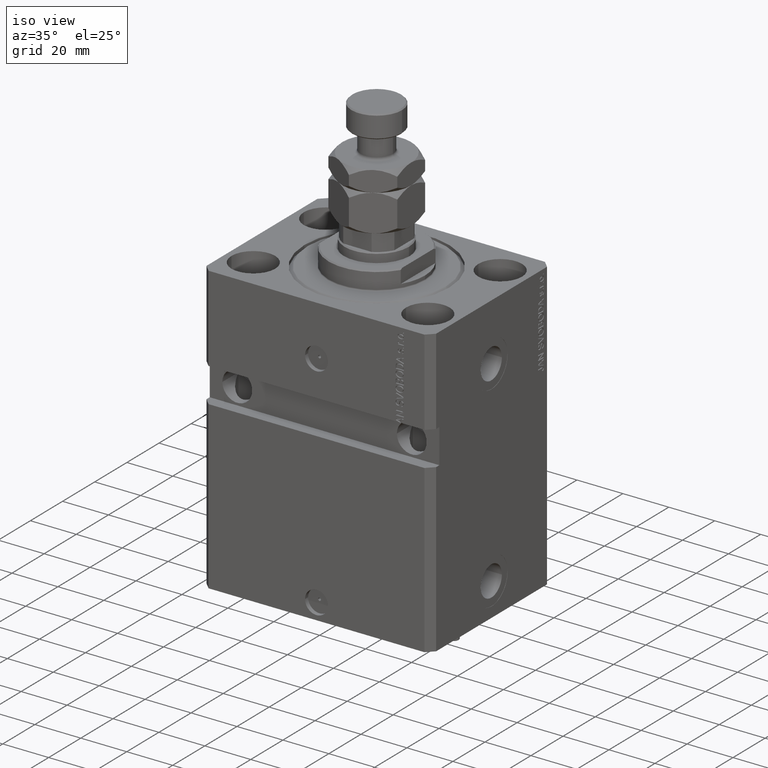
[diagram: clean part render]
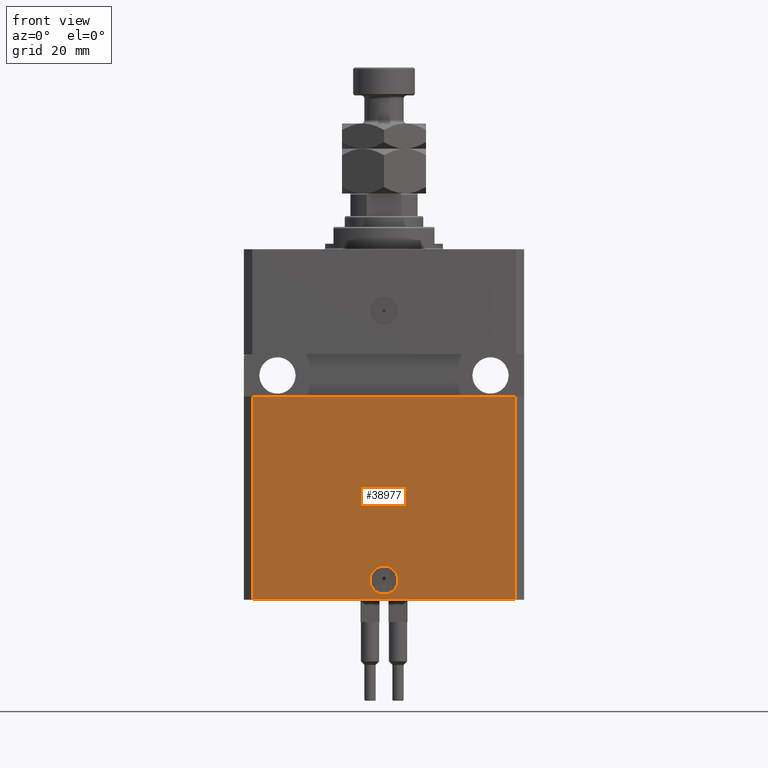
[diagram: tour spotlight — one face highlighted and labeled with its STEP entity id]
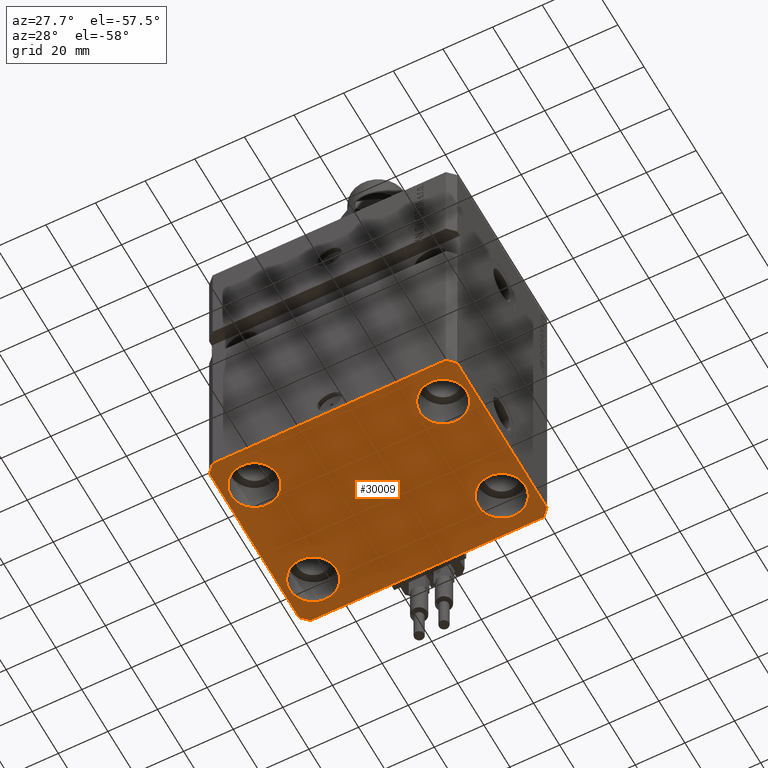
[diagram: tour spotlight — one face highlighted and labeled with its STEP entity id]
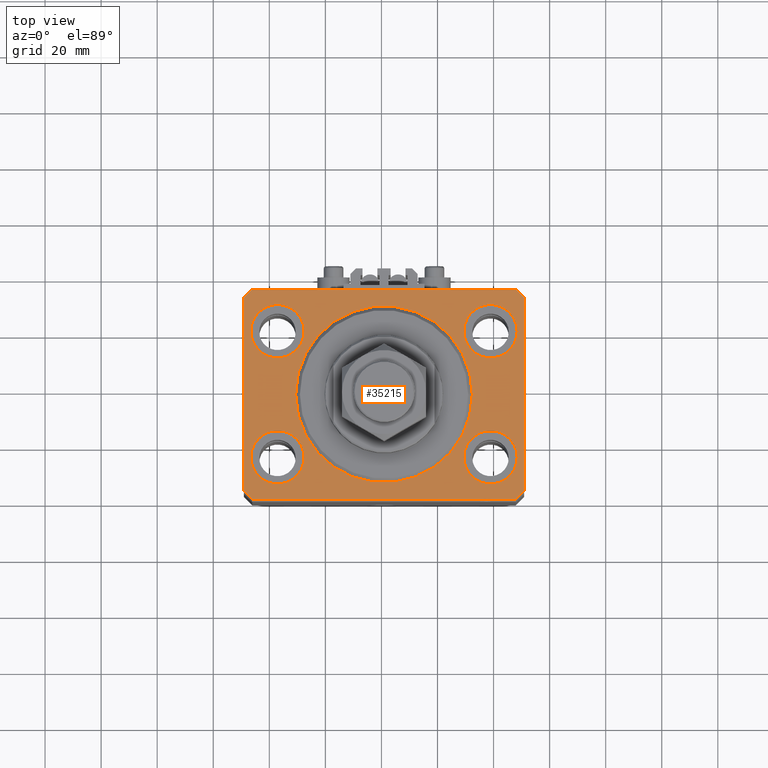
[diagram: tour spotlight — one face highlighted and labeled with its STEP entity id]
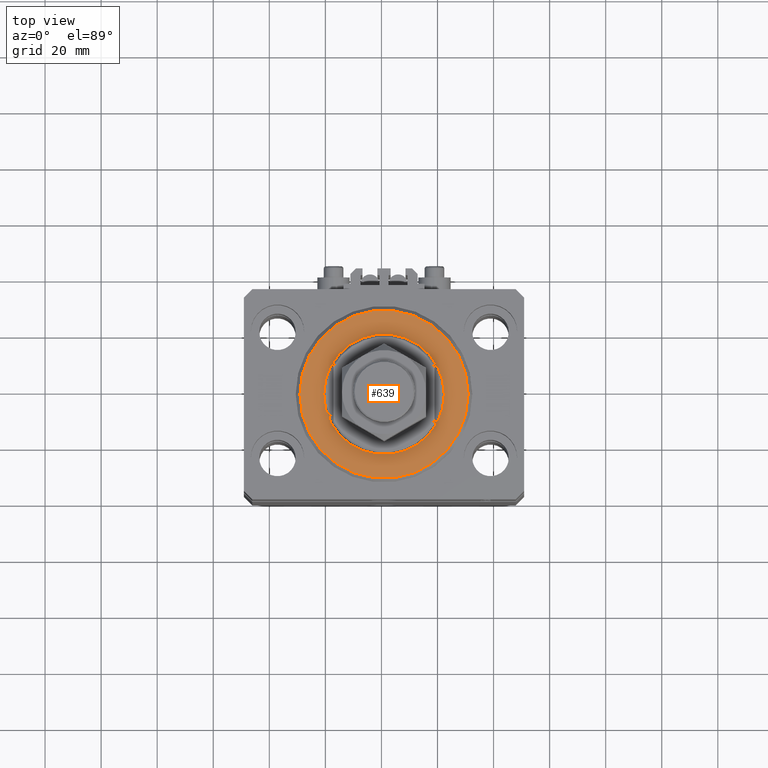
[diagram: tour spotlight — one face highlighted and labeled with its STEP entity id]
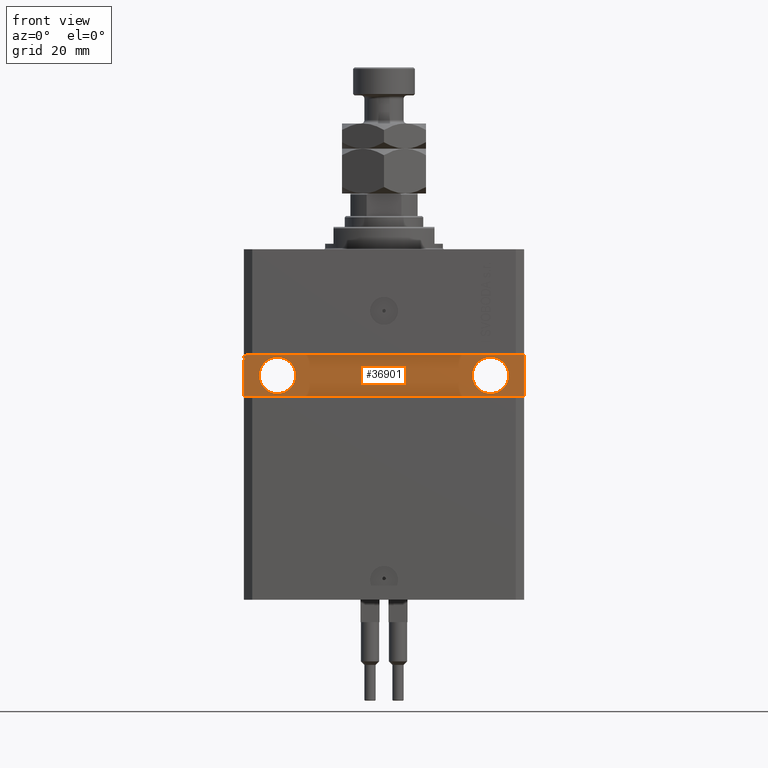
[diagram: tour spotlight — one face highlighted and labeled with its STEP entity id]
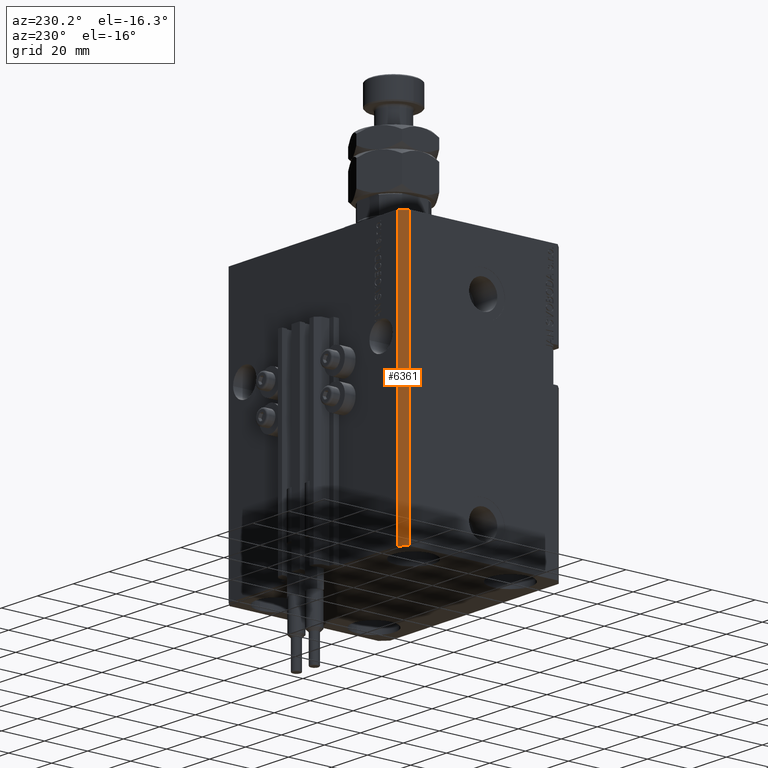
[diagram: tour spotlight — one face highlighted and labeled with its STEP entity id]
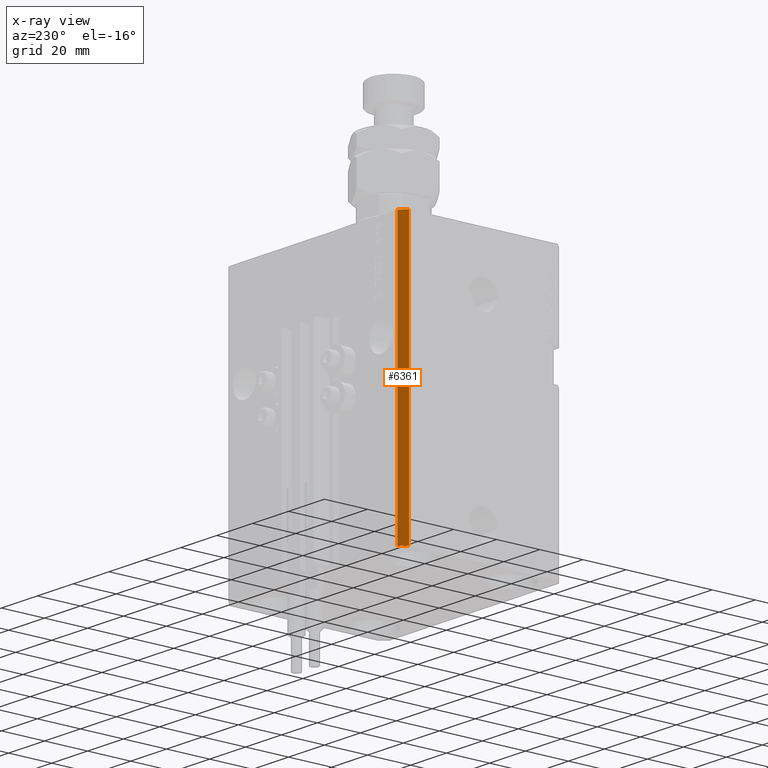
[diagram: x-ray of the same camera — body ghosted, this tour face saturated]
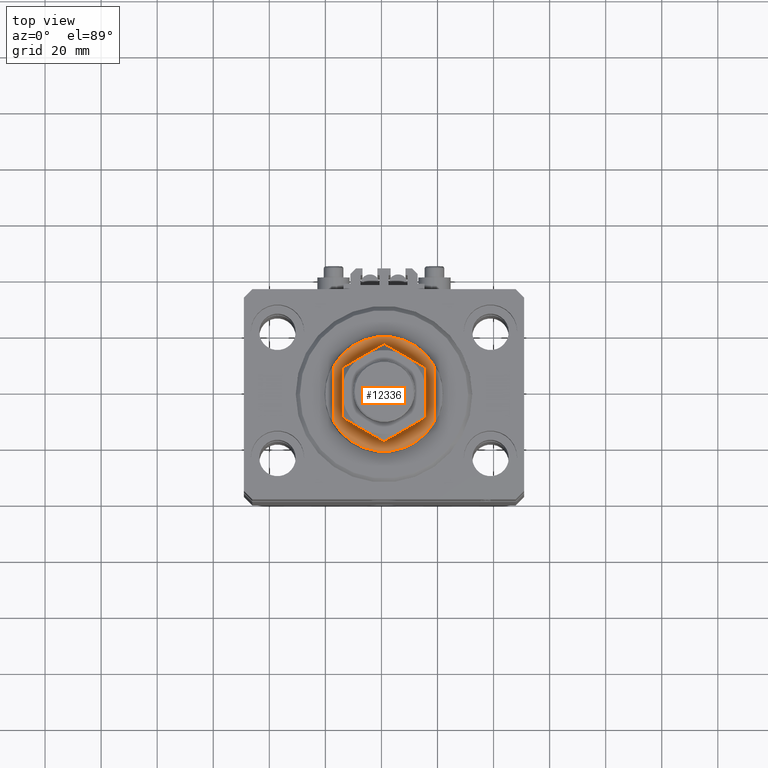
[diagram: tour spotlight — one face highlighted and labeled with its STEP entity id]
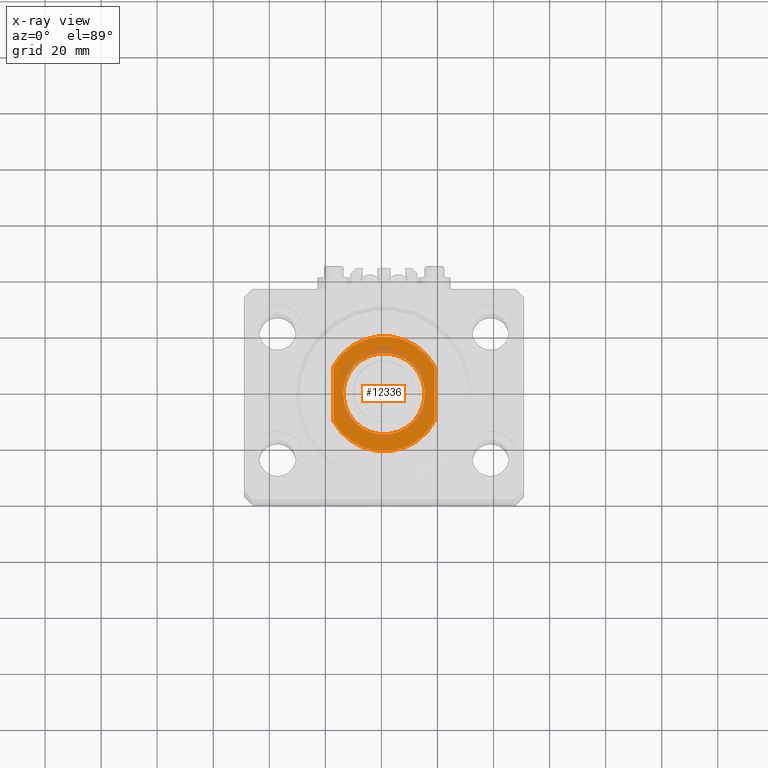
[diagram: x-ray of the same camera — body ghosted, this tour face saturated]
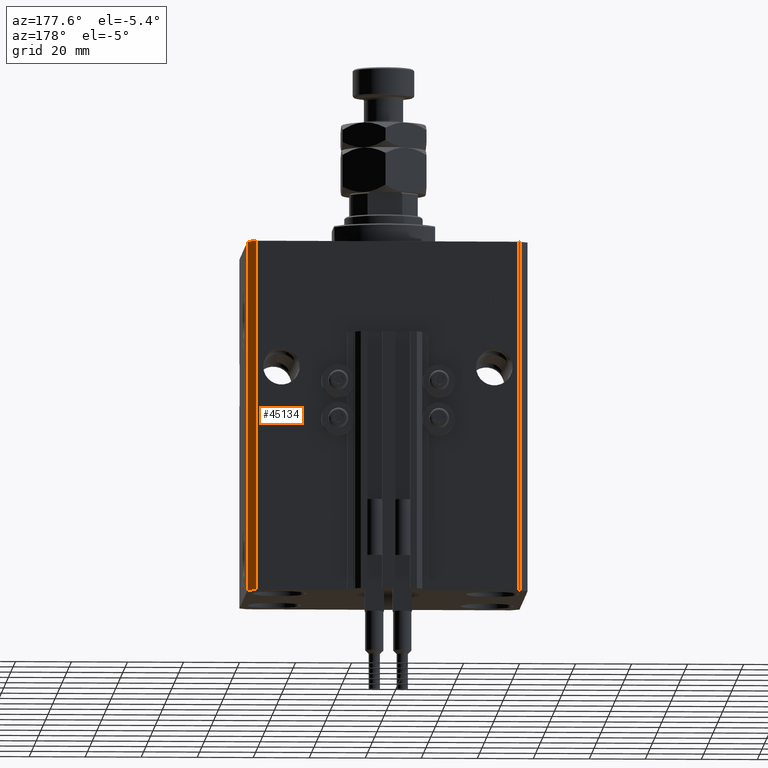
[diagram: tour spotlight — one face highlighted and labeled with its STEP entity id]
A machine part: a face-by-face anatomy tour. The part has 1208 B-rep faces; the first image is the clean iso view, then the 8 largest visible faces are spotlighted one at a time (largest first), each with its STEP entity span.

Face 1 — front view, entity #38977. In plain terms, the highlighted planar face has unit normal (-0, -1, 0).
Definition (entity closure, byte-faithful):
#624 = LINE ( 'NONE', #31873, #36852 ) ;
#2534 = ORIENTED_EDGE ( 'NONE', *, *, #33662, .F. ) ;
#2753 = ORIENTED_EDGE ( 'NONE', *, *, #40247, .F. ) ;
#4140 = VERTEX_POINT ( 'NONE', #24186 ) ;
#5308 = AXIS2_PLACEMENT_3D ( 'NONE', #49892, #46569, #38598 ) ;
#9005 = CARTESIAN_POINT ( 'NONE',  ( -50.00000000000001421, -37.50000000000000711, -52.50000000000000000 ) ) ;
#9187 = CARTESIAN_POINT ( 'NONE',  ( 47.00000000000000000, -37.50000000000000711, -125.0000000000000000 ) ) ;
#9949 = ORIENTED_EDGE ( 'NONE', *, *, #45185, .F. ) ;
#10150 = FACE_OUTER_BOUND ( 'NONE', #45857, .T. ) ;
#10646 = DIRECTION ( 'NONE',  ( -1.476360405086644309E-16, -1.000000000000000000, 0.000000000000000000 ) ) ;
#12846 = LINE ( 'NONE', #31787, #22810 ) ;
#14243 = PLANE ( 'NONE',  #15582 ) ;
#14327 = CARTESIAN_POINT ( 'NONE',  ( 47.00000000000000000, -37.49999999999999289, -52.49999999999998579 ) ) ;
#15582 = AXIS2_PLACEMENT_3D ( 'NONE', #18331, #10646, #41877 ) ;
#16046 = EDGE_CURVE ( 'NONE', #16250, #44176, #49485, .T. ) ;
#16250 = VERTEX_POINT ( 'NONE', #37516 ) ;
#17706 = CARTESIAN_POINT ( 'NONE',  ( -47.00000000000000000, -37.49999999999999289, -125.0000000000000000 ) ) ;
#17937 = CARTESIAN_POINT ( 'NONE',  ( 5.000000000000000888, -37.50000000000000000, -118.0000000000000000 ) ) ;
#18331 = CARTESIAN_POINT ( 'NONE',  ( -47.00000000000000000, -37.49999999999999289, -125.0000000000000000 ) ) ;
#19663 = ORIENTED_EDGE ( 'NONE', *, *, #24474, .T. ) ;
#21917 = FACE_BOUND ( 'NONE', #36209, .T. ) ;
#22810 = VECTOR ( 'NONE', #24624, 1000.000000000000000 ) ;
#23066 = VECTOR ( 'NONE', #35385, 1000.000000000000000 ) ;
#24186 = CARTESIAN_POINT ( 'NONE',  ( -46.99999999999998579, -37.50000000000000711, -52.50000000000000000 ) ) ;
#24474 = EDGE_CURVE ( 'NONE', #28994, #31612, #12846, .T. ) ;
#24624 = DIRECTION ( 'NONE',  ( 1.000000000000000000, -1.476360405086644309E-16, 0.000000000000000000 ) ) ;
#24766 = EDGE_CURVE ( 'NONE', #31612, #46244, #39905, .T. ) ;
#28994 = VERTEX_POINT ( 'NONE', #17706 ) ;
#31612 = VERTEX_POINT ( 'NONE', #46238 ) ;
#31626 = DIRECTION ( 'NONE',  ( 1.000000000000000000, 0.000000000000000000, 0.000000000000000000 ) ) ;
#31787 = CARTESIAN_POINT ( 'NONE',  ( -47.00000000000000000, -37.49999999999999289, -125.0000000000000000 ) ) ;
#31873 = CARTESIAN_POINT ( 'NONE',  ( -47.00000000000000000, -37.49999999999999289, -125.0000000000000000 ) ) ;
#31933 = ORIENTED_EDGE ( 'NONE', *, *, #16046, .F. ) ;
#32733 = DIRECTION ( 'NONE',  ( 0.000000000000000000, 0.000000000000000000, 1.000000000000000000 ) ) ;
#33439 = VECTOR ( 'NONE', #32733, 1000.000000000000000 ) ;
#33662 = EDGE_CURVE ( 'NONE', #44176, #16250, #50013, .T. ) ;
#35385 = DIRECTION ( 'NONE',  ( 1.000000000000000000, 1.387778780781445676E-16, 1.387778780781445676E-16 ) ) ;
#36209 = EDGE_LOOP ( 'NONE', ( #2534, #31933 ) ) ;
#36852 = VECTOR ( 'NONE', #47514, 1000.000000000000000 ) ;
#37516 = CARTESIAN_POINT ( 'NONE',  ( -5.000000000000011546, -37.50000000000000000, -118.0000000000000000 ) ) ;
#38349 = CARTESIAN_POINT ( 'NONE',  ( -5.536351519074916863E-15, -37.50000000000000000, -118.0000000000000000 ) ) ;
#38598 = DIRECTION ( 'NONE',  ( 1.000000000000000000, 0.000000000000000000, 0.000000000000000000 ) ) ;
#38977 = ADVANCED_FACE ( 'NONE', ( #21917, #10150 ), #14243, .T. ) ;
#39548 = DIRECTION ( 'NONE',  ( 1.176083712526788232E-16, -1.000000000000000000, 0.000000000000000000 ) ) ;
#39905 = LINE ( 'NONE', #9187, #33439 ) ;
#40247 = EDGE_CURVE ( 'NONE', #28994, #4140, #624, .T. ) ;
#41877 = DIRECTION ( 'NONE',  ( 1.000000000000000000, -1.476360405086644309E-16, 0.000000000000000000 ) ) ;
#44098 = LINE ( 'NONE', #9005, #23066 ) ;
#44176 = VERTEX_POINT ( 'NONE', #17937 ) ;
#44825 = ORIENTED_EDGE ( 'NONE', *, *, #24766, .T. ) ;
#45185 = EDGE_CURVE ( 'NONE', #4140, #46244, #44098, .T. ) ;
#45857 = EDGE_LOOP ( 'NONE', ( #9949, #2753, #19663, #44825 ) ) ;
#46238 = CARTESIAN_POINT ( 'NONE',  ( 47.00000000000000000, -37.50000000000000711, -125.0000000000000000 ) ) ;
#46244 = VERTEX_POINT ( 'NONE', #14327 ) ;
#46569 = DIRECTION ( 'NONE',  ( 1.176083712526788232E-16, -1.000000000000000000, 0.000000000000000000 ) ) ;
#47514 = DIRECTION ( 'NONE',  ( 0.000000000000000000, 0.000000000000000000, 1.000000000000000000 ) ) ;
#47569 = AXIS2_PLACEMENT_3D ( 'NONE', #38349, #39548, #31626 ) ;
#49485 = CIRCLE ( 'NONE', #5308, 5.000000000000006217 ) ;
#49892 = CARTESIAN_POINT ( 'NONE',  ( -5.536351519074916863E-15, -37.50000000000000000, -118.0000000000000000 ) ) ;
#50013 = CIRCLE ( 'NONE', #47569, 5.000000000000006217 ) ;

Face 2 — auxiliary view, entity #30009. In plain terms, the highlighted planar face has unit normal (0, 0, 1).
Definition (entity closure, byte-faithful):
#750 = DIRECTION ( 'NONE',  ( 1.000000000000000000, 0.000000000000000000, -0.000000000000000000 ) ) ;
#842 = DIRECTION ( 'NONE',  ( -0.000000000000000000, -0.000000000000000000, 1.000000000000000000 ) ) ;
#1279 = DIRECTION ( 'NONE',  ( 1.000000000000000000, 0.000000000000000000, 0.000000000000000000 ) ) ;
#1392 = VERTEX_POINT ( 'NONE', #35659 ) ;
#1604 = ORIENTED_EDGE ( 'NONE', *, *, #40116, .T. ) ;
#1783 = DIRECTION ( 'NONE',  ( 7.441712302741091634E-15, 1.000000000000000000, 0.000000000000000000 ) ) ;
#2288 = DIRECTION ( 'NONE',  ( -0.7071067811865483499, -0.7071067811865466846, 0.000000000000000000 ) ) ;
#2649 = ORIENTED_EDGE ( 'NONE', *, *, #21124, .T. ) ;
#3585 = EDGE_CURVE ( 'NONE', #39665, #1392, #32189, .T. ) ;
#3757 = CIRCLE ( 'NONE', #6213, 9.500000000000001776 ) ;
#4286 = EDGE_CURVE ( 'NONE', #36830, #48439, #28027, .T. ) ;
#4330 = CARTESIAN_POINT ( 'NONE',  ( 50.00000000000051870, 34.49999999999995026, -125.0000000000000000 ) ) ;
#5107 = FACE_BOUND ( 'NONE', #37967, .T. ) ;
#5383 = CARTESIAN_POINT ( 'NONE',  ( -50.00000000000001421, 34.50000000000000000, -125.0000000000000000 ) ) ;
#5485 = LINE ( 'NONE', #20352, #36122 ) ;
#5603 = CARTESIAN_POINT ( 'NONE',  ( 0.000000000000000000, 0.000000000000000000, -125.0000000000000000 ) ) ;
#6213 = AXIS2_PLACEMENT_3D ( 'NONE', #15054, #26328, #29915 ) ;
#7426 = ORIENTED_EDGE ( 'NONE', *, *, #14638, .F. ) ;
#7501 = EDGE_LOOP ( 'NONE', ( #45617, #41314 ) ) ;
#7824 = VERTEX_POINT ( 'NONE', #20257 ) ;
#8733 = CARTESIAN_POINT ( 'NONE',  ( 47.00000000000000000, -37.50000000000000711, -125.0000000000000000 ) ) ;
#8992 = ORIENTED_EDGE ( 'NONE', *, *, #21645, .F. ) ;
#9207 = FACE_BOUND ( 'NONE', #49477, .T. ) ;
#10465 = VERTEX_POINT ( 'NONE', #4330 ) ;
#10629 = DIRECTION ( 'NONE',  ( 1.000000000000000000, 0.000000000000000000, 0.000000000000000000 ) ) ;
#11416 = VECTOR ( 'NONE', #2288, 1000.000000000000000 ) ;
#11931 = DIRECTION ( 'NONE',  ( -0.000000000000000000, -0.000000000000000000, 1.000000000000000000 ) ) ;
#12249 = CARTESIAN_POINT ( 'NONE',  ( 28.50000000000000355, 22.50000000000001421, -125.0000000000000000 ) ) ;
#12846 = LINE ( 'NONE', #31787, #22810 ) ;
#13040 = CARTESIAN_POINT ( 'NONE',  ( 47.50000000000000711, -22.50000000000000000, -125.0000000000000000 ) ) ;
#13129 = AXIS2_PLACEMENT_3D ( 'NONE', #30093, #45721, #10629 ) ;
#13216 = CARTESIAN_POINT ( 'NONE',  ( -50.00000000000000000, -34.50000000000000000, -125.0000000000000000 ) ) ;
#13364 = DIRECTION ( 'NONE',  ( 1.000000000000000000, 0.000000000000000000, 0.000000000000000000 ) ) ;
#13456 = VECTOR ( 'NONE', #32772, 1000.000000000000000 ) ;
#14638 = EDGE_CURVE ( 'NONE', #31612, #22093, #44074, .T. ) ;
#14888 = CARTESIAN_POINT ( 'NONE',  ( -47.00000000000001421, 37.50000000000000000, -125.0000000000000000 ) ) ;
#15054 = CARTESIAN_POINT ( 'NONE',  ( -38.00000000000000711, -22.50000000000000000, -125.0000000000000000 ) ) ;
#16390 = PLANE ( 'NONE',  #40074 ) ;
#16627 = ORIENTED_EDGE ( 'NONE', *, *, #24474, .F. ) ;
#17141 = DIRECTION ( 'NONE',  ( 0.000000000000000000, 0.000000000000000000, 1.000000000000000000 ) ) ;
#17158 = DIRECTION ( 'NONE',  ( -0.000000000000000000, -0.000000000000000000, 1.000000000000000000 ) ) ;
#17706 = CARTESIAN_POINT ( 'NONE',  ( -47.00000000000000000, -37.49999999999999289, -125.0000000000000000 ) ) ;
#18472 = EDGE_CURVE ( 'NONE', #1392, #39665, #3757, .T. ) ;
#18785 = AXIS2_PLACEMENT_3D ( 'NONE', #44612, #48712, #13364 ) ;
#19273 = DIRECTION ( 'NONE',  ( 1.000000000000000000, 0.000000000000000000, 0.000000000000000000 ) ) ;
#19921 = VECTOR ( 'NONE', #20919, 1000.000000000000114 ) ;
#20257 = CARTESIAN_POINT ( 'NONE',  ( -47.50000000000000711, 22.50000000000000000, -125.0000000000000000 ) ) ;
#20352 = CARTESIAN_POINT ( 'NONE',  ( 47.00000000000056843, 37.49999999999999289, -125.0000000000000000 ) ) ;
#20579 = CARTESIAN_POINT ( 'NONE',  ( -38.00000000000000711, 22.50000000000000000, -125.0000000000000000 ) ) ;
#20919 = DIRECTION ( 'NONE',  ( 0.7071067811865491270, -0.7071067811865459074, 0.000000000000000000 ) ) ;
#20988 = FACE_BOUND ( 'NONE', #44365, .T. ) ;
#21124 = EDGE_CURVE ( 'NONE', #48439, #36830, #25124, .T. ) ;
#21306 = CIRCLE ( 'NONE', #13129, 9.500000000000001776 ) ;
#21582 = ORIENTED_EDGE ( 'NONE', *, *, #4286, .T. ) ;
#21645 = EDGE_CURVE ( 'NONE', #22093, #10465, #22028, .T. ) ;
#21905 = VERTEX_POINT ( 'NONE', #13040 ) ;
#22028 = LINE ( 'NONE', #44587, #22704 ) ;
#22093 = VERTEX_POINT ( 'NONE', #26080 ) ;
#22192 = ORIENTED_EDGE ( 'NONE', *, *, #34230, .F. ) ;
#22467 = LINE ( 'NONE', #5383, #13456 ) ;
#22704 = VECTOR ( 'NONE', #1783, 1000.000000000000000 ) ;
#22810 = VECTOR ( 'NONE', #24624, 1000.000000000000000 ) ;
#22952 = AXIS2_PLACEMENT_3D ( 'NONE', #20579, #842, #43886 ) ;
#23826 = VERTEX_POINT ( 'NONE', #13216 ) ;
#24053 = AXIS2_PLACEMENT_3D ( 'NONE', #34868, #26190, #19273 ) ;
#24213 = DIRECTION ( 'NONE',  ( -1.000000000000000000, 7.381802025433175941E-17, 0.000000000000000000 ) ) ;
#24334 = FACE_OUTER_BOUND ( 'NONE', #24810, .T. ) ;
#24474 = EDGE_CURVE ( 'NONE', #28994, #31612, #12846, .T. ) ;
#24608 = CIRCLE ( 'NONE', #29543, 9.500000000000001776 ) ;
#24619 = DIRECTION ( 'NONE',  ( 0.7071067811865483499, 0.7071067811865466846, 0.000000000000000000 ) ) ;
#24624 = DIRECTION ( 'NONE',  ( 1.000000000000000000, -1.476360405086644309E-16, 0.000000000000000000 ) ) ;
#24810 = EDGE_LOOP ( 'NONE', ( #39874, #22192, #8992, #7426, #16627, #48425, #25683, #26684 ) ) ;
#25111 = CARTESIAN_POINT ( 'NONE',  ( -38.00000000000000711, -22.50000000000000000, -125.0000000000000000 ) ) ;
#25124 = CIRCLE ( 'NONE', #45596, 9.500000000000001776 ) ;
#25332 = FACE_BOUND ( 'NONE', #7501, .T. ) ;
#25624 = LINE ( 'NONE', #49441, #11416 ) ;
#25683 = ORIENTED_EDGE ( 'NONE', *, *, #50621, .F. ) ;
#26080 = CARTESIAN_POINT ( 'NONE',  ( 50.00000000000000000, -34.50000000000000711, -125.0000000000000000 ) ) ;
#26190 = DIRECTION ( 'NONE',  ( -0.000000000000000000, -0.000000000000000000, 1.000000000000000000 ) ) ;
#26328 = DIRECTION ( 'NONE',  ( -0.000000000000000000, -0.000000000000000000, 1.000000000000000000 ) ) ;
#26684 = ORIENTED_EDGE ( 'NONE', *, *, #28482, .F. ) ;
#27296 = DIRECTION ( 'NONE',  ( 1.000000000000000000, 0.000000000000000000, 0.000000000000000000 ) ) ;
#28027 = CIRCLE ( 'NONE', #24053, 9.500000000000001776 ) ;
#28343 = LINE ( 'NONE', #49071, #19921 ) ;
#28482 = EDGE_CURVE ( 'NONE', #48005, #42818, #25624, .T. ) ;
#28821 = EDGE_CURVE ( 'NONE', #7824, #45101, #47417, .T. ) ;
#28994 = VERTEX_POINT ( 'NONE', #17706 ) ;
#29543 = AXIS2_PLACEMENT_3D ( 'NONE', #30876, #11931, #27296 ) ;
#29915 = DIRECTION ( 'NONE',  ( 1.000000000000000000, 0.000000000000000000, 0.000000000000000000 ) ) ;
#30009 = ADVANCED_FACE ( 'NONE', ( #20988, #9207, #5107, #25332, #24334 ), #16390, .F. ) ;
#30093 = CARTESIAN_POINT ( 'NONE',  ( 38.00000000000000711, -22.50000000000000000, -125.0000000000000000 ) ) ;
#30876 = CARTESIAN_POINT ( 'NONE',  ( 38.00000000000000711, -22.50000000000000000, -125.0000000000000000 ) ) ;
#31594 = EDGE_CURVE ( 'NONE', #39418, #21905, #21306, .T. ) ;
#31612 = VERTEX_POINT ( 'NONE', #46238 ) ;
#31787 = CARTESIAN_POINT ( 'NONE',  ( -47.00000000000000000, -37.49999999999999289, -125.0000000000000000 ) ) ;
#32189 = CIRCLE ( 'NONE', #33834, 9.500000000000001776 ) ;
#32772 = DIRECTION ( 'NONE',  ( 2.011273595335428326E-16, -1.000000000000000000, 0.000000000000000000 ) ) ;
#33824 = ORIENTED_EDGE ( 'NONE', *, *, #18472, .T. ) ;
#33825 = EDGE_CURVE ( 'NONE', #48790, #48005, #5485, .T. ) ;
#33834 = AXIS2_PLACEMENT_3D ( 'NONE', #25111, #17158, #1279 ) ;
#34230 = EDGE_CURVE ( 'NONE', #10465, #48790, #47964, .T. ) ;
#34868 = CARTESIAN_POINT ( 'NONE',  ( 38.00000000000000711, 22.50000000000001421, -125.0000000000000000 ) ) ;
#35659 = CARTESIAN_POINT ( 'NONE',  ( -47.50000000000000711, -22.50000000000000000, -125.0000000000000000 ) ) ;
#36122 = VECTOR ( 'NONE', #24213, 1000.000000000000000 ) ;
#36137 = CARTESIAN_POINT ( 'NONE',  ( 28.50000000000000355, -22.50000000000000000, -125.0000000000000000 ) ) ;
#36718 = EDGE_CURVE ( 'NONE', #23826, #28994, #28343, .T. ) ;
#36830 = VERTEX_POINT ( 'NONE', #42391 ) ;
#37967 = EDGE_LOOP ( 'NONE', ( #2649, #21582 ) ) ;
#38322 = DIRECTION ( 'NONE',  ( 1.000000000000000000, 0.000000000000000000, 0.000000000000000000 ) ) ;
#38513 = CIRCLE ( 'NONE', #22952, 9.500000000000001776 ) ;
#39307 = CARTESIAN_POINT ( 'NONE',  ( 47.00000000000056843, 37.49999999999999289, -125.0000000000000000 ) ) ;
#39418 = VERTEX_POINT ( 'NONE', #36137 ) ;
#39665 = VERTEX_POINT ( 'NONE', #40434 ) ;
#39874 = ORIENTED_EDGE ( 'NONE', *, *, #33825, .F. ) ;
#40074 = AXIS2_PLACEMENT_3D ( 'NONE', #5603, #17141, #750 ) ;
#40116 = EDGE_CURVE ( 'NONE', #21905, #39418, #24608, .T. ) ;
#40434 = CARTESIAN_POINT ( 'NONE',  ( -28.50000000000000355, -22.50000000000000000, -125.0000000000000000 ) ) ;
#40436 = ORIENTED_EDGE ( 'NONE', *, *, #31594, .T. ) ;
#41314 = ORIENTED_EDGE ( 'NONE', *, *, #42881, .T. ) ;
#41759 = DIRECTION ( 'NONE',  ( -0.7071067811865361374, 0.7071067811865588970, 0.000000000000000000 ) ) ;
#41922 = CARTESIAN_POINT ( 'NONE',  ( 38.00000000000000711, 22.50000000000001421, -125.0000000000000000 ) ) ;
#42391 = CARTESIAN_POINT ( 'NONE',  ( 47.50000000000000711, 22.50000000000001421, -125.0000000000000000 ) ) ;
#42818 = VERTEX_POINT ( 'NONE', #46993 ) ;
#42881 = EDGE_CURVE ( 'NONE', #45101, #7824, #38513, .T. ) ;
#43886 = DIRECTION ( 'NONE',  ( 1.000000000000000000, 0.000000000000000000, 0.000000000000000000 ) ) ;
#44074 = LINE ( 'NONE', #8733, #47012 ) ;
#44341 = VECTOR ( 'NONE', #41759, 1000.000000000000114 ) ;
#44365 = EDGE_LOOP ( 'NONE', ( #33824, #44740 ) ) ;
#44587 = CARTESIAN_POINT ( 'NONE',  ( 50.00000000000000000, -34.50000000000000711, -125.0000000000000000 ) ) ;
#44612 = CARTESIAN_POINT ( 'NONE',  ( -38.00000000000000711, 22.50000000000000000, -125.0000000000000000 ) ) ;
#44740 = ORIENTED_EDGE ( 'NONE', *, *, #3585, .T. ) ;
#45101 = VERTEX_POINT ( 'NONE', #50537 ) ;
#45596 = AXIS2_PLACEMENT_3D ( 'NONE', #41922, #46552, #38322 ) ;
#45617 = ORIENTED_EDGE ( 'NONE', *, *, #28821, .T. ) ;
#45721 = DIRECTION ( 'NONE',  ( -0.000000000000000000, -0.000000000000000000, 1.000000000000000000 ) ) ;
#45873 = CARTESIAN_POINT ( 'NONE',  ( 50.00000000000051870, 34.49999999999995026, -125.0000000000000000 ) ) ;
#46238 = CARTESIAN_POINT ( 'NONE',  ( 47.00000000000000000, -37.50000000000000711, -125.0000000000000000 ) ) ;
#46552 = DIRECTION ( 'NONE',  ( -0.000000000000000000, -0.000000000000000000, 1.000000000000000000 ) ) ;
#46993 = CARTESIAN_POINT ( 'NONE',  ( -50.00000000000001421, 34.50000000000000000, -125.0000000000000000 ) ) ;
#47012 = VECTOR ( 'NONE', #24619, 1000.000000000000000 ) ;
#47417 = CIRCLE ( 'NONE', #18785, 9.500000000000001776 ) ;
#47964 = LINE ( 'NONE', #45873, #44341 ) ;
#48005 = VERTEX_POINT ( 'NONE', #14888 ) ;
#48425 = ORIENTED_EDGE ( 'NONE', *, *, #36718, .F. ) ;
#48439 = VERTEX_POINT ( 'NONE', #12249 ) ;
#48712 = DIRECTION ( 'NONE',  ( -0.000000000000000000, -0.000000000000000000, 1.000000000000000000 ) ) ;
#48790 = VERTEX_POINT ( 'NONE', #39307 ) ;
#49071 = CARTESIAN_POINT ( 'NONE',  ( -50.00000000000000000, -34.50000000000000000, -125.0000000000000000 ) ) ;
#49441 = CARTESIAN_POINT ( 'NONE',  ( -47.00000000000001421, 37.50000000000000000, -125.0000000000000000 ) ) ;
#49477 = EDGE_LOOP ( 'NONE', ( #40436, #1604 ) ) ;
#50537 = CARTESIAN_POINT ( 'NONE',  ( -28.50000000000000355, 22.50000000000000000, -125.0000000000000000 ) ) ;
#50621 = EDGE_CURVE ( 'NONE', #42818, #23826, #22467, .T. ) ;

Face 3 — top view, entity #35215. In plain terms, the highlighted planar face has unit normal (0, 0, 1).
Definition (entity closure, byte-faithful):
#268 = LINE ( 'NONE', #16165, #7966 ) ;
#439 = VERTEX_POINT ( 'NONE', #40935 ) ;
#693 = EDGE_CURVE ( 'NONE', #38546, #32422, #1699, .T. ) ;
#883 = CIRCLE ( 'NONE', #14000, 9.500000000000001776 ) ;
#960 = VECTOR ( 'NONE', #16564, 1000.000000000000114 ) ;
#973 = EDGE_CURVE ( 'NONE', #439, #10367, #15765, .T. ) ;
#1269 = EDGE_CURVE ( 'NONE', #29566, #7871, #34155, .T. ) ;
#1294 = DIRECTION ( 'NONE',  ( 0.000000000000000000, 0.000000000000000000, 1.000000000000000000 ) ) ;
#1350 = FACE_BOUND ( 'NONE', #27021, .T. ) ;
#1366 = EDGE_LOOP ( 'NONE', ( #22735, #35811, #3515, #24971, #40465, #36413, #40053, #23907 ) ) ;
#1591 = DIRECTION ( 'NONE',  ( 1.000000000000000000, 0.000000000000000000, 0.000000000000000000 ) ) ;
#1699 = LINE ( 'NONE', #1954, #24717 ) ;
#1827 = VECTOR ( 'NONE', #49788, 1000.000000000000000 ) ;
#1954 = CARTESIAN_POINT ( 'NONE',  ( 47.00000000000000000, -37.50000000000000711, 0.000000000000000000 ) ) ;
#2263 = DIRECTION ( 'NONE',  ( 1.000000000000000000, -1.476360405086644309E-16, 0.000000000000000000 ) ) ;
#3515 = ORIENTED_EDGE ( 'NONE', *, *, #1269, .T. ) ;
#3885 = CARTESIAN_POINT ( 'NONE',  ( 47.00000000000000000, -37.50000000000000711, 0.000000000000000000 ) ) ;
#4370 = DIRECTION ( 'NONE',  ( 1.000000000000000000, 0.000000000000000000, 0.000000000000000000 ) ) ;
#4391 = CIRCLE ( 'NONE', #24851, 9.500000000000001776 ) ;
#4430 = FACE_BOUND ( 'NONE', #30130, .T. ) ;
#4919 = VERTEX_POINT ( 'NONE', #5077 ) ;
#5077 = CARTESIAN_POINT ( 'NONE',  ( 47.50000000000000711, 22.50000000000001421, 0.000000000000000000 ) ) ;
#5452 = CARTESIAN_POINT ( 'NONE',  ( -38.00000000000000711, 22.50000000000000000, 0.000000000000000000 ) ) ;
#6148 = CARTESIAN_POINT ( 'NONE',  ( -38.00000000000000711, -22.50000000000000000, 0.000000000000000000 ) ) ;
#6449 = CARTESIAN_POINT ( 'NONE',  ( -28.50000000000000355, 22.50000000000000000, 0.000000000000000000 ) ) ;
#6454 = DIRECTION ( 'NONE',  ( 0.000000000000000000, 0.000000000000000000, 1.000000000000000000 ) ) ;
#6572 = VECTOR ( 'NONE', #46757, 1000.000000000000114 ) ;
#6752 = AXIS2_PLACEMENT_3D ( 'NONE', #50617, #12434, #8329 ) ;
#7346 = CIRCLE ( 'NONE', #30261, 9.500000000000001776 ) ;
#7537 = EDGE_CURVE ( 'NONE', #12673, #18337, #4391, .T. ) ;
#7622 = EDGE_CURVE ( 'NONE', #23544, #29566, #11073, .T. ) ;
#7871 = VERTEX_POINT ( 'NONE', #43069 ) ;
#7966 = VECTOR ( 'NONE', #19753, 1000.000000000000000 ) ;
#8106 = ORIENTED_EDGE ( 'NONE', *, *, #17025, .F. ) ;
#8329 = DIRECTION ( 'NONE',  ( 1.000000000000000000, 0.000000000000000000, 0.000000000000000000 ) ) ;
#8352 = CARTESIAN_POINT ( 'NONE',  ( -47.00000000000000000, -37.49999999999999289, 0.000000000000000000 ) ) ;
#8506 = VECTOR ( 'NONE', #30022, 1000.000000000000000 ) ;
#8522 = LINE ( 'NONE', #16713, #14740 ) ;
#8877 = CARTESIAN_POINT ( 'NONE',  ( 50.00000000000051870, 34.49999999999995026, 0.000000000000000000 ) ) ;
#10059 = DIRECTION ( 'NONE',  ( 1.000000000000000000, 0.000000000000000000, 0.000000000000000000 ) ) ;
#10329 = DIRECTION ( 'NONE',  ( 1.000000000000000000, 0.000000000000000000, 0.000000000000000000 ) ) ;
#10367 = VERTEX_POINT ( 'NONE', #31510 ) ;
#10450 = DIRECTION ( 'NONE',  ( 0.000000000000000000, 0.000000000000000000, 1.000000000000000000 ) ) ;
#11073 = LINE ( 'NONE', #37680, #8506 ) ;
#12434 = DIRECTION ( 'NONE',  ( 0.000000000000000000, 0.000000000000000000, 1.000000000000000000 ) ) ;
#12650 = CARTESIAN_POINT ( 'NONE',  ( 38.00000000000000711, 22.50000000000001421, 0.000000000000000000 ) ) ;
#12673 = VERTEX_POINT ( 'NONE', #6449 ) ;
#12701 = EDGE_CURVE ( 'NONE', #28177, #23544, #268, .T. ) ;
#13442 = CIRCLE ( 'NONE', #42039, 9.500000000000001776 ) ;
#13564 = EDGE_CURVE ( 'NONE', #35567, #47782, #13442, .T. ) ;
#13952 = EDGE_CURVE ( 'NONE', #14255, #4919, #33006, .T. ) ;
#14000 = AXIS2_PLACEMENT_3D ( 'NONE', #32857, #41549, #10329 ) ;
#14255 = VERTEX_POINT ( 'NONE', #24187 ) ;
#14422 = CARTESIAN_POINT ( 'NONE',  ( 28.50000000000000355, -22.50000000000000000, 0.000000000000000000 ) ) ;
#14740 = VECTOR ( 'NONE', #44112, 1000.000000000000000 ) ;
#15119 = ORIENTED_EDGE ( 'NONE', *, *, #31884, .F. ) ;
#15180 = CARTESIAN_POINT ( 'NONE',  ( 0.000000000000000000, 0.000000000000000000, 0.000000000000000000 ) ) ;
#15442 = AXIS2_PLACEMENT_3D ( 'NONE', #12650, #6454, #10059 ) ;
#15711 = DIRECTION ( 'NONE',  ( 1.000000000000000000, 0.000000000000000000, 0.000000000000000000 ) ) ;
#15765 = CIRCLE ( 'NONE', #6752, 31.50000000000000000 ) ;
#16165 = CARTESIAN_POINT ( 'NONE',  ( 47.00000000000056843, 37.49999999999999289, 0.000000000000000000 ) ) ;
#16260 = CARTESIAN_POINT ( 'NONE',  ( -50.00000000000000000, -34.50000000000000000, 0.000000000000000000 ) ) ;
#16564 = DIRECTION ( 'NONE',  ( -0.7071067811865361374, 0.7071067811865588970, 0.000000000000000000 ) ) ;
#16713 = CARTESIAN_POINT ( 'NONE',  ( 50.00000000000000000, -34.50000000000000711, 0.000000000000000000 ) ) ;
#16791 = CIRCLE ( 'NONE', #45424, 9.500000000000001776 ) ;
#16874 = CARTESIAN_POINT ( 'NONE',  ( -47.50000000000000711, 22.50000000000000000, 0.000000000000000000 ) ) ;
#16931 = DIRECTION ( 'NONE',  ( 1.000000000000000000, 0.000000000000000000, 0.000000000000000000 ) ) ;
#17025 = EDGE_CURVE ( 'NONE', #18337, #12673, #16791, .T. ) ;
#17109 = CARTESIAN_POINT ( 'NONE',  ( -47.00000000000001421, 37.50000000000000000, 0.000000000000000000 ) ) ;
#17341 = DIRECTION ( 'NONE',  ( 0.7071067811865483499, 0.7071067811865466846, 0.000000000000000000 ) ) ;
#17677 = CARTESIAN_POINT ( 'NONE',  ( -47.50000000000000711, -22.50000000000000000, 0.000000000000000000 ) ) ;
#18337 = VERTEX_POINT ( 'NONE', #16874 ) ;
#19279 = CARTESIAN_POINT ( 'NONE',  ( 47.50000000000000711, -22.50000000000000000, 0.000000000000000000 ) ) ;
#19753 = DIRECTION ( 'NONE',  ( -1.000000000000000000, 7.381802025433175941E-17, 0.000000000000000000 ) ) ;
#20659 = CARTESIAN_POINT ( 'NONE',  ( 50.00000000000000000, -34.50000000000000711, 0.000000000000000000 ) ) ;
#20837 = CARTESIAN_POINT ( 'NONE',  ( -38.00000000000000711, 22.50000000000000000, 0.000000000000000000 ) ) ;
#21079 = DIRECTION ( 'NONE',  ( 0.000000000000000000, 0.000000000000000000, 1.000000000000000000 ) ) ;
#21224 = ORIENTED_EDGE ( 'NONE', *, *, #23277, .F. ) ;
#21329 = DIRECTION ( 'NONE',  ( 1.000000000000000000, 0.000000000000000000, 0.000000000000000000 ) ) ;
#22031 = ORIENTED_EDGE ( 'NONE', *, *, #13564, .F. ) ;
#22293 = AXIS2_PLACEMENT_3D ( 'NONE', #28003, #47993, #40012 ) ;
#22735 = ORIENTED_EDGE ( 'NONE', *, *, #12701, .T. ) ;
#23277 = EDGE_CURVE ( 'NONE', #4919, #14255, #37484, .T. ) ;
#23398 = CARTESIAN_POINT ( 'NONE',  ( -38.00000000000000711, -22.50000000000000000, 0.000000000000000000 ) ) ;
#23544 = VERTEX_POINT ( 'NONE', #17109 ) ;
#23669 = FACE_BOUND ( 'NONE', #44205, .T. ) ;
#23907 = ORIENTED_EDGE ( 'NONE', *, *, #44987, .T. ) ;
#24187 = CARTESIAN_POINT ( 'NONE',  ( 28.50000000000000355, 22.50000000000001421, 0.000000000000000000 ) ) ;
#24309 = EDGE_CURVE ( 'NONE', #10367, #439, #44897, .T. ) ;
#24421 = FACE_OUTER_BOUND ( 'NONE', #1366, .T. ) ;
#24468 = AXIS2_PLACEMENT_3D ( 'NONE', #15180, #46928, #4370 ) ;
#24717 = VECTOR ( 'NONE', #17341, 1000.000000000000000 ) ;
#24851 = AXIS2_PLACEMENT_3D ( 'NONE', #20837, #36432, #21329 ) ;
#24971 = ORIENTED_EDGE ( 'NONE', *, *, #38986, .T. ) ;
#25300 = AXIS2_PLACEMENT_3D ( 'NONE', #47878, #48380, #40419 ) ;
#25530 = EDGE_CURVE ( 'NONE', #32010, #31828, #38365, .T. ) ;
#27021 = EDGE_LOOP ( 'NONE', ( #21224, #38144 ) ) ;
#28003 = CARTESIAN_POINT ( 'NONE',  ( 0.000000000000000000, 0.000000000000000000, 0.000000000000000000 ) ) ;
#28177 = VERTEX_POINT ( 'NONE', #42465 ) ;
#28345 = LINE ( 'NONE', #8877, #960 ) ;
#28359 = CARTESIAN_POINT ( 'NONE',  ( 50.00000000000051870, 34.49999999999995026, 0.000000000000000000 ) ) ;
#28401 = VERTEX_POINT ( 'NONE', #28359 ) ;
#29566 = VERTEX_POINT ( 'NONE', #38996 ) ;
#29682 = CARTESIAN_POINT ( 'NONE',  ( -47.00000000000000000, -37.49999999999999289, 0.000000000000000000 ) ) ;
#30022 = DIRECTION ( 'NONE',  ( -0.7071067811865483499, -0.7071067811865466846, 0.000000000000000000 ) ) ;
#30130 = EDGE_LOOP ( 'NONE', ( #47933, #15119 ) ) ;
#30261 = AXIS2_PLACEMENT_3D ( 'NONE', #23398, #35148, #15711 ) ;
#30964 = EDGE_CURVE ( 'NONE', #34461, #38546, #37597, .T. ) ;
#31378 = LINE ( 'NONE', #16260, #6572 ) ;
#31510 = CARTESIAN_POINT ( 'NONE',  ( 31.50000000000000000, 0.000000000000000000, 0.000000000000000000 ) ) ;
#31828 = VERTEX_POINT ( 'NONE', #14422 ) ;
#31884 = EDGE_CURVE ( 'NONE', #31828, #32010, #883, .T. ) ;
#32010 = VERTEX_POINT ( 'NONE', #19279 ) ;
#32349 = FACE_BOUND ( 'NONE', #34033, .T. ) ;
#32422 = VERTEX_POINT ( 'NONE', #20659 ) ;
#32857 = CARTESIAN_POINT ( 'NONE',  ( 38.00000000000000711, -22.50000000000000000, 0.000000000000000000 ) ) ;
#33006 = CIRCLE ( 'NONE', #38751, 9.500000000000001776 ) ;
#34033 = EDGE_LOOP ( 'NONE', ( #50426, #8106 ) ) ;
#34155 = LINE ( 'NONE', #42097, #1827 ) ;
#34461 = VERTEX_POINT ( 'NONE', #8352 ) ;
#35148 = DIRECTION ( 'NONE',  ( 0.000000000000000000, 0.000000000000000000, 1.000000000000000000 ) ) ;
#35215 = ADVANCED_FACE ( 'NONE', ( #23669, #4430, #1350, #32349, #39264, #24421 ), #43368, .T. ) ;
#35567 = VERTEX_POINT ( 'NONE', #17677 ) ;
#35811 = ORIENTED_EDGE ( 'NONE', *, *, #7622, .T. ) ;
#36413 = ORIENTED_EDGE ( 'NONE', *, *, #693, .T. ) ;
#36432 = DIRECTION ( 'NONE',  ( 0.000000000000000000, 0.000000000000000000, 1.000000000000000000 ) ) ;
#37484 = CIRCLE ( 'NONE', #15442, 9.500000000000001776 ) ;
#37597 = LINE ( 'NONE', #29682, #49133 ) ;
#37680 = CARTESIAN_POINT ( 'NONE',  ( -47.00000000000001421, 37.50000000000000000, 0.000000000000000000 ) ) ;
#38144 = ORIENTED_EDGE ( 'NONE', *, *, #13952, .F. ) ;
#38365 = CIRCLE ( 'NONE', #25300, 9.500000000000001776 ) ;
#38546 = VERTEX_POINT ( 'NONE', #3885 ) ;
#38751 = AXIS2_PLACEMENT_3D ( 'NONE', #41167, #10450, #46046 ) ;
#38986 = EDGE_CURVE ( 'NONE', #7871, #34461, #31378, .T. ) ;
#38996 = CARTESIAN_POINT ( 'NONE',  ( -50.00000000000001421, 34.50000000000000000, 0.000000000000000000 ) ) ;
#39264 = FACE_BOUND ( 'NONE', #43290, .T. ) ;
#40012 = DIRECTION ( 'NONE',  ( 1.000000000000000000, 0.000000000000000000, -0.000000000000000000 ) ) ;
#40053 = ORIENTED_EDGE ( 'NONE', *, *, #41296, .T. ) ;
#40419 = DIRECTION ( 'NONE',  ( 1.000000000000000000, 0.000000000000000000, 0.000000000000000000 ) ) ;
#40465 = ORIENTED_EDGE ( 'NONE', *, *, #30964, .T. ) ;
#40935 = CARTESIAN_POINT ( 'NONE',  ( -31.50000000000000000, 3.857637417314162689E-15, 0.000000000000000000 ) ) ;
#41167 = CARTESIAN_POINT ( 'NONE',  ( 38.00000000000000711, 22.50000000000001421, 0.000000000000000000 ) ) ;
#41240 = EDGE_CURVE ( 'NONE', #47782, #35567, #7346, .T. ) ;
#41296 = EDGE_CURVE ( 'NONE', #32422, #28401, #8522, .T. ) ;
#41549 = DIRECTION ( 'NONE',  ( 0.000000000000000000, 0.000000000000000000, 1.000000000000000000 ) ) ;
#41838 = ORIENTED_EDGE ( 'NONE', *, *, #41240, .F. ) ;
#42039 = AXIS2_PLACEMENT_3D ( 'NONE', #6148, #1294, #16931 ) ;
#42097 = CARTESIAN_POINT ( 'NONE',  ( -50.00000000000001421, 34.50000000000000000, 0.000000000000000000 ) ) ;
#42465 = CARTESIAN_POINT ( 'NONE',  ( 47.00000000000056843, 37.49999999999999289, 0.000000000000000000 ) ) ;
#43069 = CARTESIAN_POINT ( 'NONE',  ( -50.00000000000000000, -34.50000000000000000, 0.000000000000000000 ) ) ;
#43290 = EDGE_LOOP ( 'NONE', ( #47146, #50606 ) ) ;
#43368 = PLANE ( 'NONE',  #22293 ) ;
#43862 = CARTESIAN_POINT ( 'NONE',  ( -28.50000000000000355, -22.50000000000000000, 0.000000000000000000 ) ) ;
#44112 = DIRECTION ( 'NONE',  ( 7.441712302741091634E-15, 1.000000000000000000, 0.000000000000000000 ) ) ;
#44205 = EDGE_LOOP ( 'NONE', ( #41838, #22031 ) ) ;
#44897 = CIRCLE ( 'NONE', #24468, 31.50000000000000000 ) ;
#44987 = EDGE_CURVE ( 'NONE', #28401, #28177, #28345, .T. ) ;
#45424 = AXIS2_PLACEMENT_3D ( 'NONE', #5452, #21079, #1591 ) ;
#46046 = DIRECTION ( 'NONE',  ( 1.000000000000000000, 0.000000000000000000, 0.000000000000000000 ) ) ;
#46757 = DIRECTION ( 'NONE',  ( 0.7071067811865491270, -0.7071067811865459074, 0.000000000000000000 ) ) ;
#46928 = DIRECTION ( 'NONE',  ( 0.000000000000000000, 0.000000000000000000, 1.000000000000000000 ) ) ;
#47146 = ORIENTED_EDGE ( 'NONE', *, *, #24309, .F. ) ;
#47782 = VERTEX_POINT ( 'NONE', #43862 ) ;
#47878 = CARTESIAN_POINT ( 'NONE',  ( 38.00000000000000711, -22.50000000000000000, 0.000000000000000000 ) ) ;
#47933 = ORIENTED_EDGE ( 'NONE', *, *, #25530, .F. ) ;
#47993 = DIRECTION ( 'NONE',  ( 0.000000000000000000, 0.000000000000000000, 1.000000000000000000 ) ) ;
#48380 = DIRECTION ( 'NONE',  ( 0.000000000000000000, 0.000000000000000000, 1.000000000000000000 ) ) ;
#49133 = VECTOR ( 'NONE', #2263, 1000.000000000000000 ) ;
#49788 = DIRECTION ( 'NONE',  ( 2.011273595335428326E-16, -1.000000000000000000, 0.000000000000000000 ) ) ;
#50426 = ORIENTED_EDGE ( 'NONE', *, *, #7537, .F. ) ;
#50606 = ORIENTED_EDGE ( 'NONE', *, *, #973, .F. ) ;
#50617 = CARTESIAN_POINT ( 'NONE',  ( 0.000000000000000000, 0.000000000000000000, 0.000000000000000000 ) ) ;

Face 4 — top view, entity #639. In plain terms, the highlighted planar face has unit normal (0, 0, -1).
Definition (entity closure, byte-faithful):
#450 = DIRECTION ( 'NONE',  ( 1.000000000000000000, 0.000000000000000000, -0.000000000000000000 ) ) ;
#610 = CIRCLE ( 'NONE', #29201, 21.50000000000000000 ) ;
#639 = ADVANCED_FACE ( 'NONE', ( #35533, #4791 ), #42990, .F. ) ;
#1754 = CIRCLE ( 'NONE', #30403, 30.00000000000002132 ) ;
#4501 = DIRECTION ( 'NONE',  ( 1.000000000000000000, 0.000000000000000000, 0.000000000000000000 ) ) ;
#4791 = FACE_OUTER_BOUND ( 'NONE', #30754, .T. ) ;
#6294 = CARTESIAN_POINT ( 'NONE',  ( -21.50000000000000000, 2.632990618166809630E-15, -2.168404344971008868E-16 ) ) ;
#6961 = AXIS2_PLACEMENT_3D ( 'NONE', #9151, #42093, #21433 ) ;
#7403 = DIRECTION ( 'NONE',  ( 0.000000000000000000, 0.000000000000000000, 1.000000000000000000 ) ) ;
#8203 = CIRCLE ( 'NONE', #15576, 30.00000000000002132 ) ;
#8408 = DIRECTION ( 'NONE',  ( 1.000000000000000000, 0.000000000000000000, 0.000000000000000000 ) ) ;
#8898 = CARTESIAN_POINT ( 'NONE',  ( 0.000000000000000000, 0.000000000000000000, 0.000000000000000000 ) ) ;
#9151 = CARTESIAN_POINT ( 'NONE',  ( 0.000000000000000000, 0.000000000000000000, 0.000000000000000000 ) ) ;
#9528 = ORIENTED_EDGE ( 'NONE', *, *, #31469, .T. ) ;
#10774 = EDGE_CURVE ( 'NONE', #25008, #19529, #47893, .T. ) ;
#12939 = EDGE_CURVE ( 'NONE', #19529, #25008, #610, .T. ) ;
#13368 = VERTEX_POINT ( 'NONE', #38709 ) ;
#15576 = AXIS2_PLACEMENT_3D ( 'NONE', #44713, #23994, #4501 ) ;
#19346 = CARTESIAN_POINT ( 'NONE',  ( 21.50000000000000000, 0.000000000000000000, -2.168404344971008868E-16 ) ) ;
#19529 = VERTEX_POINT ( 'NONE', #6294 ) ;
#20770 = VERTEX_POINT ( 'NONE', #27126 ) ;
#21433 = DIRECTION ( 'NONE',  ( 1.000000000000000000, 0.000000000000000000, 0.000000000000000000 ) ) ;
#23994 = DIRECTION ( 'NONE',  ( -0.000000000000000000, -0.000000000000000000, -1.000000000000000000 ) ) ;
#24434 = ORIENTED_EDGE ( 'NONE', *, *, #34751, .T. ) ;
#24857 = DIRECTION ( 'NONE',  ( -0.000000000000000000, -0.000000000000000000, -1.000000000000000000 ) ) ;
#25008 = VERTEX_POINT ( 'NONE', #19346 ) ;
#25143 = ORIENTED_EDGE ( 'NONE', *, *, #12939, .T. ) ;
#27126 = CARTESIAN_POINT ( 'NONE',  ( 30.00000000000002132, 0.000000000000000000, 0.000000000000000000 ) ) ;
#27207 = EDGE_LOOP ( 'NONE', ( #27825, #25143 ) ) ;
#27385 = CARTESIAN_POINT ( 'NONE',  ( 0.000000000000000000, 0.000000000000000000, 0.000000000000000000 ) ) ;
#27825 = ORIENTED_EDGE ( 'NONE', *, *, #10774, .T. ) ;
#29201 = AXIS2_PLACEMENT_3D ( 'NONE', #27385, #7403, #8408 ) ;
#29439 = CARTESIAN_POINT ( 'NONE',  ( 0.000000000000000000, 0.000000000000000000, 0.000000000000000000 ) ) ;
#30403 = AXIS2_PLACEMENT_3D ( 'NONE', #29439, #24857, #40948 ) ;
#30754 = EDGE_LOOP ( 'NONE', ( #24434, #9528 ) ) ;
#31469 = EDGE_CURVE ( 'NONE', #13368, #20770, #8203, .T. ) ;
#34751 = EDGE_CURVE ( 'NONE', #20770, #13368, #1754, .T. ) ;
#35533 = FACE_BOUND ( 'NONE', #27207, .T. ) ;
#35776 = DIRECTION ( 'NONE',  ( 0.000000000000000000, 0.000000000000000000, 1.000000000000000000 ) ) ;
#38709 = CARTESIAN_POINT ( 'NONE',  ( -30.00000000000002132, 3.765788907378112117E-15, 0.000000000000000000 ) ) ;
#40948 = DIRECTION ( 'NONE',  ( 1.000000000000000000, 0.000000000000000000, 0.000000000000000000 ) ) ;
#42093 = DIRECTION ( 'NONE',  ( 0.000000000000000000, 0.000000000000000000, 1.000000000000000000 ) ) ;
#42990 = PLANE ( 'NONE',  #48445 ) ;
#44713 = CARTESIAN_POINT ( 'NONE',  ( 0.000000000000000000, 0.000000000000000000, 0.000000000000000000 ) ) ;
#47893 = CIRCLE ( 'NONE', #6961, 21.50000000000000000 ) ;
#48445 = AXIS2_PLACEMENT_3D ( 'NONE', #8898, #35776, #450 ) ;

Face 5 — front view, entity #36901. In plain terms, the highlighted planar face has unit normal (0, -1, 0).
Definition (entity closure, byte-faithful):
#11 = CARTESIAN_POINT ( 'NONE',  ( -50.00000000000001421, -32.50000000000000711, -37.50000000000000711 ) ) ;
#197 = AXIS2_PLACEMENT_3D ( 'NONE', #12902, #12647, #21323 ) ;
#905 = CARTESIAN_POINT ( 'NONE',  ( -49.50000000000001421, -32.50000000000000711, -39.43474002179300442 ) ) ;
#1057 = VERTEX_POINT ( 'NONE', #35717 ) ;
#1336 = CARTESIAN_POINT ( 'NONE',  ( -49.50000000000000711, -32.50000000000000711, -37.99999999999999289 ) ) ;
#2793 = CARTESIAN_POINT ( 'NONE',  ( -44.49999999999998579, -32.50000000000000711, -45.00000000000000711 ) ) ;
#2962 = ORIENTED_EDGE ( 'NONE', *, *, #48654, .T. ) ;
#2966 = CARTESIAN_POINT ( 'NONE',  ( -50.00000000000001421, -32.50000000000000711, -52.50000000000000000 ) ) ;
#3559 = VECTOR ( 'NONE', #24471, 1000.000000000000000 ) ;
#4039 = CARTESIAN_POINT ( 'NONE',  ( 38.00000000000001421, -32.50000000000000000, -45.00000000000000000 ) ) ;
#4468 = ORIENTED_EDGE ( 'NONE', *, *, #15407, .F. ) ;
#4514 = CARTESIAN_POINT ( 'NONE',  ( -49.49999999999999289, -32.50000000000000711, -39.43474004052496440 ) ) ;
#4621 = VERTEX_POINT ( 'NONE', #2793 ) ;
#4860 = LINE ( 'NONE', #36588, #18281 ) ;
#5305 = CARTESIAN_POINT ( 'NONE',  ( 44.50000000000001421, -32.50000000000000000, -45.00000000000000000 ) ) ;
#5410 = DIRECTION ( 'NONE',  ( 1.101411730780568590E-16, -1.000000000000000000, 0.000000000000000000 ) ) ;
#5878 = CARTESIAN_POINT ( 'NONE',  ( -31.49999999999998579, -32.50000000000000711, -45.00000000000000711 ) ) ;
#6821 = CARTESIAN_POINT ( 'NONE',  ( 49.99999999999999289, -32.49999999999999289, -52.49999999999998579 ) ) ;
#6856 = ORIENTED_EDGE ( 'NONE', *, *, #12696, .T. ) ;
#7193 = CIRCLE ( 'NONE', #12216, 6.499999999999999112 ) ;
#7742 = VERTEX_POINT ( 'NONE', #42556 ) ;
#8319 = ORIENTED_EDGE ( 'NONE', *, *, #37851, .T. ) ;
#9634 = EDGE_CURVE ( 'NONE', #33173, #35449, #49843, .T. ) ;
#10057 = DIRECTION ( 'NONE',  ( 0.000000000000000000, 0.000000000000000000, -1.000000000000000000 ) ) ;
#10593 = EDGE_LOOP ( 'NONE', ( #24518, #33094, #4468, #48386, #6856, #2962, #47900, #11837, #8319, #28191, #46714, #14847 ) ) ;
#10914 = DIRECTION ( 'NONE',  ( 0.000000000000000000, 0.000000000000000000, -1.000000000000000000 ) ) ;
#11837 = ORIENTED_EDGE ( 'NONE', *, *, #48764, .T. ) ;
#11924 = PLANE ( 'NONE',  #12535 ) ;
#12087 = CARTESIAN_POINT ( 'NONE',  ( 38.00000000000001421, -32.50000000000000000, -45.00000000000000000 ) ) ;
#12216 = AXIS2_PLACEMENT_3D ( 'NONE', #32801, #5410, #48448 ) ;
#12351 = CARTESIAN_POINT ( 'NONE',  ( -50.00000000000001421, -32.50000000000000711, -37.99999999999999289 ) ) ;
#12535 = AXIS2_PLACEMENT_3D ( 'NONE', #23696, #27025, #46504 ) ;
#12647 = DIRECTION ( 'NONE',  ( 1.101411730780568590E-16, -1.000000000000000000, 0.000000000000000000 ) ) ;
#12696 = EDGE_CURVE ( 'NONE', #25632, #46496, #31528, .T. ) ;
#12902 = CARTESIAN_POINT ( 'NONE',  ( -37.99999999999998579, -32.50000000000000711, -45.00000000000000711 ) ) ;
#13148 = LINE ( 'NONE', #45137, #41071 ) ;
#13305 = CIRCLE ( 'NONE', #197, 6.499999999999999112 ) ;
#14050 = VERTEX_POINT ( 'NONE', #14546 ) ;
#14546 = CARTESIAN_POINT ( 'NONE',  ( 31.50000000000001421, -32.50000000000000000, -45.00000000000000000 ) ) ;
#14847 = ORIENTED_EDGE ( 'NONE', *, *, #49151, .T. ) ;
#15279 = CARTESIAN_POINT ( 'NONE',  ( -50.00000000000001421, -32.50000000000000711, -52.50000000000000000 ) ) ;
#15407 = EDGE_CURVE ( 'NONE', #25855, #42576, #46936, .T. ) ;
#15753 = LINE ( 'NONE', #20096, #28552 ) ;
#16559 = LINE ( 'NONE', #40098, #34415 ) ;
#16613 = CARTESIAN_POINT ( 'NONE',  ( -50.00000000000001421, -32.50000000000000711, -39.43474002179300442 ) ) ;
#16811 = LINE ( 'NONE', #905, #42632 ) ;
#17063 = DIRECTION ( 'NONE',  ( -1.000000000000000000, -0.000000000000000000, -0.000000000000000000 ) ) ;
#18281 = VECTOR ( 'NONE', #44053, 1000.000000000000000 ) ;
#19394 = ORIENTED_EDGE ( 'NONE', *, *, #25293, .F. ) ;
#20096 = CARTESIAN_POINT ( 'NONE',  ( 49.99999999999999289, -32.49999999999999289, -52.49999999999998579 ) ) ;
#20565 = VERTEX_POINT ( 'NONE', #5878 ) ;
#20623 = CARTESIAN_POINT ( 'NONE',  ( 49.99999999999999289, -32.49999999999999289, -37.49999999999999289 ) ) ;
#20636 = LINE ( 'NONE', #20897, #36343 ) ;
#20897 = CARTESIAN_POINT ( 'NONE',  ( -49.50000000000000711, -32.49999999999999289, -37.62144886363635976 ) ) ;
#21323 = DIRECTION ( 'NONE',  ( 1.000000000000000000, 0.000000000000000000, 0.000000000000000000 ) ) ;
#22452 = DIRECTION ( 'NONE',  ( 1.000000000000000000, 1.387778780781445676E-16, 1.387778780781445676E-16 ) ) ;
#22495 = CARTESIAN_POINT ( 'NONE',  ( -49.49999999999977973, -32.50000000000000711, -38.87066337907741342 ) ) ;
#22764 = EDGE_LOOP ( 'NONE', ( #38241, #37679 ) ) ;
#23696 = CARTESIAN_POINT ( 'NONE',  ( 4.616128571667027759E-15, -32.50000000000000000, 0.000000000000000000 ) ) ;
#24382 = EDGE_CURVE ( 'NONE', #14050, #28353, #38330, .T. ) ;
#24471 = DIRECTION ( 'NONE',  ( -1.000000000000000000, -1.387778780781445676E-16, -1.387778780781445676E-16 ) ) ;
#24518 = ORIENTED_EDGE ( 'NONE', *, *, #9634, .T. ) ;
#24901 = EDGE_CURVE ( 'NONE', #46442, #49491, #15753, .T. ) ;
#25293 = EDGE_CURVE ( 'NONE', #4621, #20565, #7193, .T. ) ;
#25524 = CARTESIAN_POINT ( 'NONE',  ( -50.00000000000001421, -32.50000000000000711, -37.50000000000000711 ) ) ;
#25632 = VERTEX_POINT ( 'NONE', #16613 ) ;
#25855 = VERTEX_POINT ( 'NONE', #4514 ) ;
#26029 = CARTESIAN_POINT ( 'NONE',  ( -50.00000000000001421, -32.50000000000000711, -37.50000000000000711 ) ) ;
#26821 = ORIENTED_EDGE ( 'NONE', *, *, #47451, .F. ) ;
#27025 = DIRECTION ( 'NONE',  ( 1.387778780781445676E-16, -1.000000000000000000, 0.000000000000000000 ) ) ;
#27073 = VERTEX_POINT ( 'NONE', #26029 ) ;
#27129 = DIRECTION ( 'NONE',  ( 1.000000000000000000, 0.000000000000000000, 0.000000000000000000 ) ) ;
#27199 = CIRCLE ( 'NONE', #28839, 6.499999999999999112 ) ;
#27242 = VECTOR ( 'NONE', #22452, 1000.000000000000000 ) ;
#27469 = CARTESIAN_POINT ( 'NONE',  ( -49.50000000000016342, -32.50000000000000711, -39.86910993535713743 ) ) ;
#28191 = ORIENTED_EDGE ( 'NONE', *, *, #50734, .F. ) ;
#28308 = LINE ( 'NONE', #20623, #3559 ) ;
#28353 = VERTEX_POINT ( 'NONE', #5305 ) ;
#28552 = VECTOR ( 'NONE', #31112, 1000.000000000000000 ) ;
#28839 = AXIS2_PLACEMENT_3D ( 'NONE', #4039, #30956, #35788 ) ;
#29126 = CARTESIAN_POINT ( 'NONE',  ( 49.99999999999999289, -32.49999999999999289, -37.49999999999999289 ) ) ;
#29908 = LINE ( 'NONE', #30159, #32276 ) ;
#30159 = CARTESIAN_POINT ( 'NONE',  ( -50.00000000000001421, -32.50000000000000711, -37.50000000000000711 ) ) ;
#30407 = DIRECTION ( 'NONE',  ( 0.000000000000000000, 0.000000000000000000, -1.000000000000000000 ) ) ;
#30537 = DIRECTION ( 'NONE',  ( 3.791485858024926499E-13, 5.261743621399925654E-29, 1.000000000000000000 ) ) ;
#30956 = DIRECTION ( 'NONE',  ( 8.806446732139697737E-17, -1.000000000000000000, 1.232595164407830672E-32 ) ) ;
#31112 = DIRECTION ( 'NONE',  ( 0.000000000000000000, 0.000000000000000000, 1.000000000000000000 ) ) ;
#31483 = VECTOR ( 'NONE', #30537, 1000.000000000000000 ) ;
#31528 = LINE ( 'NONE', #11, #39035 ) ;
#32276 = VECTOR ( 'NONE', #30407, 1000.000000000000000 ) ;
#32447 = EDGE_CURVE ( 'NONE', #42576, #35449, #16559, .T. ) ;
#32801 = CARTESIAN_POINT ( 'NONE',  ( -37.99999999999998579, -32.50000000000000711, -45.00000000000000711 ) ) ;
#33094 = ORIENTED_EDGE ( 'NONE', *, *, #32447, .F. ) ;
#33173 = VERTEX_POINT ( 'NONE', #12351 ) ;
#34415 = VECTOR ( 'NONE', #17063, 1000.000000000000000 ) ;
#34725 = LINE ( 'NONE', #15279, #27242 ) ;
#35340 = EDGE_CURVE ( 'NONE', #1057, #42254, #13148, .T. ) ;
#35449 = VERTEX_POINT ( 'NONE', #46916 ) ;
#35717 = CARTESIAN_POINT ( 'NONE',  ( -49.50000000000000711, -32.50000000000000711, -37.62144886363635976 ) ) ;
#35788 = DIRECTION ( 'NONE',  ( 1.000000000000000000, 0.000000000000000000, 0.000000000000000000 ) ) ;
#36274 = EDGE_LOOP ( 'NONE', ( #26821, #19394 ) ) ;
#36343 = VECTOR ( 'NONE', #47541, 1000.000000000000000 ) ;
#36588 = CARTESIAN_POINT ( 'NONE',  ( -49.50000000000000711, -32.49999999999999289, -37.99999999999999289 ) ) ;
#36901 = ADVANCED_FACE ( 'NONE', ( #42906, #43152, #47015 ), #11924, .T. ) ;
#37679 = ORIENTED_EDGE ( 'NONE', *, *, #24382, .F. ) ;
#37851 = EDGE_CURVE ( 'NONE', #27073, #7742, #29908, .T. ) ;
#38241 = ORIENTED_EDGE ( 'NONE', *, *, #47103, .F. ) ;
#38330 = CIRCLE ( 'NONE', #41632, 6.499999999999999112 ) ;
#39035 = VECTOR ( 'NONE', #39694, 1000.000000000000000 ) ;
#39694 = DIRECTION ( 'NONE',  ( 0.000000000000000000, 0.000000000000000000, -1.000000000000000000 ) ) ;
#40098 = CARTESIAN_POINT ( 'NONE',  ( -49.50000000000001421, -32.50000000000001421, -38.87066340383893959 ) ) ;
#41071 = VECTOR ( 'NONE', #10057, 1000.000000000000000 ) ;
#41632 = AXIS2_PLACEMENT_3D ( 'NONE', #12087, #42313, #46675 ) ;
#42254 = VERTEX_POINT ( 'NONE', #1336 ) ;
#42313 = DIRECTION ( 'NONE',  ( 8.806446732139697737E-17, -1.000000000000000000, 1.232595164407830672E-32 ) ) ;
#42556 = CARTESIAN_POINT ( 'NONE',  ( -50.00000000000001421, -32.50000000000000711, -37.62144886363636687 ) ) ;
#42576 = VERTEX_POINT ( 'NONE', #22495 ) ;
#42632 = VECTOR ( 'NONE', #27129, 1000.000000000000000 ) ;
#42906 = FACE_BOUND ( 'NONE', #22764, .T. ) ;
#43152 = FACE_BOUND ( 'NONE', #36274, .T. ) ;
#43563 = EDGE_CURVE ( 'NONE', #25632, #25855, #16811, .T. ) ;
#44053 = DIRECTION ( 'NONE',  ( -1.000000000000000000, -0.000000000000000000, -0.000000000000000000 ) ) ;
#45137 = CARTESIAN_POINT ( 'NONE',  ( -49.50000000000000711, -32.49999999999999289, -37.62144886363635976 ) ) ;
#46442 = VERTEX_POINT ( 'NONE', #6821 ) ;
#46496 = VERTEX_POINT ( 'NONE', #2966 ) ;
#46504 = DIRECTION ( 'NONE',  ( 1.000000000000000000, 1.387778780781445676E-16, 0.000000000000000000 ) ) ;
#46675 = DIRECTION ( 'NONE',  ( 1.000000000000000000, 0.000000000000000000, 0.000000000000000000 ) ) ;
#46714 = ORIENTED_EDGE ( 'NONE', *, *, #35340, .T. ) ;
#46916 = CARTESIAN_POINT ( 'NONE',  ( -50.00000000000001421, -32.50000000000000711, -38.87066340383893959 ) ) ;
#46936 = LINE ( 'NONE', #27469, #31483 ) ;
#47015 = FACE_OUTER_BOUND ( 'NONE', #10593, .T. ) ;
#47103 = EDGE_CURVE ( 'NONE', #28353, #14050, #27199, .T. ) ;
#47451 = EDGE_CURVE ( 'NONE', #20565, #4621, #13305, .T. ) ;
#47541 = DIRECTION ( 'NONE',  ( -1.000000000000000000, -0.000000000000000000, -0.000000000000000000 ) ) ;
#47900 = ORIENTED_EDGE ( 'NONE', *, *, #24901, .T. ) ;
#48386 = ORIENTED_EDGE ( 'NONE', *, *, #43563, .F. ) ;
#48448 = DIRECTION ( 'NONE',  ( 1.000000000000000000, 0.000000000000000000, 0.000000000000000000 ) ) ;
#48654 = EDGE_CURVE ( 'NONE', #46496, #46442, #34725, .T. ) ;
#48655 = VECTOR ( 'NONE', #10914, 1000.000000000000000 ) ;
#48764 = EDGE_CURVE ( 'NONE', #49491, #27073, #28308, .T. ) ;
#49151 = EDGE_CURVE ( 'NONE', #42254, #33173, #4860, .T. ) ;
#49491 = VERTEX_POINT ( 'NONE', #29126 ) ;
#49843 = LINE ( 'NONE', #25524, #48655 ) ;
#50734 = EDGE_CURVE ( 'NONE', #1057, #7742, #20636, .T. ) ;

Face 6 — auxiliary view, entity #6361. An x-ray twin of the same camera follows (body ghosted, this face saturated) — the face is partly hidden behind the body. In plain terms, the highlighted planar face has unit normal (-0.7071, 0.7071, 0).
Definition (entity closure, byte-faithful):
#2288 = DIRECTION ( 'NONE',  ( -0.7071067811865483499, -0.7071067811865466846, 0.000000000000000000 ) ) ;
#6361 = ADVANCED_FACE ( 'NONE', ( #8844 ), #31891, .T. ) ;
#6793 = EDGE_LOOP ( 'NONE', ( #25104, #25390, #32308, #33421 ) ) ;
#7622 = EDGE_CURVE ( 'NONE', #23544, #29566, #11073, .T. ) ;
#8506 = VECTOR ( 'NONE', #30022, 1000.000000000000000 ) ;
#8596 = VECTOR ( 'NONE', #26091, 1000.000000000000000 ) ;
#8844 = FACE_OUTER_BOUND ( 'NONE', #6793, .T. ) ;
#11073 = LINE ( 'NONE', #37680, #8506 ) ;
#11416 = VECTOR ( 'NONE', #2288, 1000.000000000000000 ) ;
#14888 = CARTESIAN_POINT ( 'NONE',  ( -47.00000000000001421, 37.50000000000000000, -125.0000000000000000 ) ) ;
#16667 = EDGE_CURVE ( 'NONE', #48005, #23544, #44791, .T. ) ;
#17109 = CARTESIAN_POINT ( 'NONE',  ( -47.00000000000001421, 37.50000000000000000, 0.000000000000000000 ) ) ;
#22145 = EDGE_CURVE ( 'NONE', #42818, #29566, #40101, .T. ) ;
#23544 = VERTEX_POINT ( 'NONE', #17109 ) ;
#24730 = CARTESIAN_POINT ( 'NONE',  ( -47.00000000000001421, 37.50000000000000000, -125.0000000000000000 ) ) ;
#25104 = ORIENTED_EDGE ( 'NONE', *, *, #7622, .F. ) ;
#25390 = ORIENTED_EDGE ( 'NONE', *, *, #16667, .F. ) ;
#25624 = LINE ( 'NONE', #49441, #11416 ) ;
#26091 = DIRECTION ( 'NONE',  ( 0.000000000000000000, 0.000000000000000000, 1.000000000000000000 ) ) ;
#28482 = EDGE_CURVE ( 'NONE', #48005, #42818, #25624, .T. ) ;
#29413 = CARTESIAN_POINT ( 'NONE',  ( -47.00000000000001421, 37.50000000000000000, -125.0000000000000000 ) ) ;
#29566 = VERTEX_POINT ( 'NONE', #38996 ) ;
#30022 = DIRECTION ( 'NONE',  ( -0.7071067811865483499, -0.7071067811865466846, 0.000000000000000000 ) ) ;
#31177 = DIRECTION ( 'NONE',  ( 0.000000000000000000, 0.000000000000000000, 1.000000000000000000 ) ) ;
#31891 = PLANE ( 'NONE',  #40328 ) ;
#32308 = ORIENTED_EDGE ( 'NONE', *, *, #28482, .T. ) ;
#33421 = ORIENTED_EDGE ( 'NONE', *, *, #22145, .T. ) ;
#35226 = DIRECTION ( 'NONE',  ( -0.7071067811865466846, 0.7071067811865483499, 0.000000000000000000 ) ) ;
#37680 = CARTESIAN_POINT ( 'NONE',  ( -47.00000000000001421, 37.50000000000000000, 0.000000000000000000 ) ) ;
#38996 = CARTESIAN_POINT ( 'NONE',  ( -50.00000000000001421, 34.50000000000000000, 0.000000000000000000 ) ) ;
#40101 = LINE ( 'NONE', #43208, #41521 ) ;
#40328 = AXIS2_PLACEMENT_3D ( 'NONE', #24730, #35226, #41082 ) ;
#41082 = DIRECTION ( 'NONE',  ( -0.7071067811865483499, -0.7071067811865466846, 0.000000000000000000 ) ) ;
#41521 = VECTOR ( 'NONE', #31177, 1000.000000000000000 ) ;
#42818 = VERTEX_POINT ( 'NONE', #46993 ) ;
#43208 = CARTESIAN_POINT ( 'NONE',  ( -50.00000000000001421, 34.50000000000000000, -125.0000000000000000 ) ) ;
#44791 = LINE ( 'NONE', #29413, #8596 ) ;
#46993 = CARTESIAN_POINT ( 'NONE',  ( -50.00000000000001421, 34.50000000000000000, -125.0000000000000000 ) ) ;
#48005 = VERTEX_POINT ( 'NONE', #14888 ) ;
#49441 = CARTESIAN_POINT ( 'NONE',  ( -47.00000000000001421, 37.50000000000000000, -125.0000000000000000 ) ) ;

Face 7 — top view, entity #12336. An x-ray twin of the same camera follows (body ghosted, this face saturated) — the face is partly hidden behind the body. In plain terms, the highlighted planar face has unit normal (0, 0, 1).
Definition (entity closure, byte-faithful):
#47 = CARTESIAN_POINT ( 'NONE',  ( 18.00000000000000000, -41.24318125460256113, -8.000000000000000000 ) ) ;
#70 = VERTEX_POINT ( 'NONE', #48038 ) ;
#546 = DIRECTION ( 'NONE',  ( -0.000000000000000000, -0.000000000000000000, 1.000000000000000000 ) ) ;
#2749 = AXIS2_PLACEMENT_3D ( 'NONE', #40962, #25120, #5635 ) ;
#2813 = ORIENTED_EDGE ( 'NONE', *, *, #19222, .T. ) ;
#4519 = EDGE_CURVE ( 'NONE', #19171, #17010, #26503, .T. ) ;
#4870 = DIRECTION ( 'NONE',  ( 0.000000000000000000, 0.000000000000000000, -1.000000000000000000 ) ) ;
#5030 = LINE ( 'NONE', #31681, #47877 ) ;
#5635 = DIRECTION ( 'NONE',  ( -1.000000000000000000, 0.000000000000000000, 0.000000000000000000 ) ) ;
#9110 = EDGE_CURVE ( 'NONE', #36418, #11180, #22869, .T. ) ;
#10932 = CARTESIAN_POINT ( 'NONE',  ( -18.00000000000000000, 9.810708435174301911, -8.000000000000000000 ) ) ;
#11180 = VERTEX_POINT ( 'NONE', #35338 ) ;
#11235 = AXIS2_PLACEMENT_3D ( 'NONE', #19819, #28000, #15987 ) ;
#11600 = ORIENTED_EDGE ( 'NONE', *, *, #16151, .F. ) ;
#11785 = CARTESIAN_POINT ( 'NONE',  ( 18.00000000000000000, 9.810708435174301911, -8.000000000000000000 ) ) ;
#12035 = VERTEX_POINT ( 'NONE', #10932 ) ;
#12336 = ADVANCED_FACE ( 'NONE', ( #23416, #39261 ), #12387, .T. ) ;
#12387 = PLANE ( 'NONE',  #11235 ) ;
#15987 = DIRECTION ( 'NONE',  ( -1.000000000000000000, 0.000000000000000000, -0.000000000000000000 ) ) ;
#16151 = EDGE_CURVE ( 'NONE', #12035, #70, #5030, .T. ) ;
#16186 = DIRECTION ( 'NONE',  ( -1.000000000000000000, 0.000000000000000000, 0.000000000000000000 ) ) ;
#17010 = VERTEX_POINT ( 'NONE', #37429 ) ;
#19171 = VERTEX_POINT ( 'NONE', #23119 ) ;
#19222 = EDGE_CURVE ( 'NONE', #11180, #70, #29944, .T. ) ;
#19819 = CARTESIAN_POINT ( 'NONE',  ( 0.000000000000000000, 0.000000000000000000, -8.000000000000000000 ) ) ;
#20260 = ORIENTED_EDGE ( 'NONE', *, *, #4519, .T. ) ;
#22560 = ORIENTED_EDGE ( 'NONE', *, *, #44125, .T. ) ;
#22869 = LINE ( 'NONE', #47, #37177 ) ;
#23119 = CARTESIAN_POINT ( 'NONE',  ( 14.49999999999998579, 1.775737858763660437E-15, -8.000000000000000000 ) ) ;
#23416 = FACE_BOUND ( 'NONE', #37904, .T. ) ;
#23888 = DIRECTION ( 'NONE',  ( -1.000000000000000000, 0.000000000000000000, 0.000000000000000000 ) ) ;
#24910 = ORIENTED_EDGE ( 'NONE', *, *, #47727, .T. ) ;
#25120 = DIRECTION ( 'NONE',  ( -0.000000000000000000, -0.000000000000000000, 1.000000000000000000 ) ) ;
#25589 = CIRCLE ( 'NONE', #38694, 20.50000000000000355 ) ;
#26503 = CIRCLE ( 'NONE', #2749, 14.49999999999998579 ) ;
#26970 = DIRECTION ( 'NONE',  ( 0.000000000000000000, -1.000000000000000000, -0.000000000000000000 ) ) ;
#28000 = DIRECTION ( 'NONE',  ( 0.000000000000000000, 0.000000000000000000, -1.000000000000000000 ) ) ;
#28278 = ORIENTED_EDGE ( 'NONE', *, *, #9110, .T. ) ;
#29944 = CIRCLE ( 'NONE', #36474, 20.50000000000000355 ) ;
#31309 = DIRECTION ( 'NONE',  ( 0.000000000000000000, 0.000000000000000000, -1.000000000000000000 ) ) ;
#31681 = CARTESIAN_POINT ( 'NONE',  ( -18.00000000000000000, -41.24318125460256113, -8.000000000000000000 ) ) ;
#31772 = DIRECTION ( 'NONE',  ( -1.000000000000000000, 0.000000000000000000, 0.000000000000000000 ) ) ;
#33618 = AXIS2_PLACEMENT_3D ( 'NONE', #35124, #546, #16186 ) ;
#35124 = CARTESIAN_POINT ( 'NONE',  ( 0.000000000000000000, 0.000000000000000000, -8.000000000000000000 ) ) ;
#35338 = CARTESIAN_POINT ( 'NONE',  ( 18.00000000000000000, -9.810708435174301911, -8.000000000000000000 ) ) ;
#36418 = VERTEX_POINT ( 'NONE', #11785 ) ;
#36474 = AXIS2_PLACEMENT_3D ( 'NONE', #39729, #31309, #23888 ) ;
#36898 = CIRCLE ( 'NONE', #33618, 14.49999999999998579 ) ;
#37177 = VECTOR ( 'NONE', #26970, 1000.000000000000000 ) ;
#37429 = CARTESIAN_POINT ( 'NONE',  ( -14.49999999999998579, 0.000000000000000000, -8.000000000000000000 ) ) ;
#37904 = EDGE_LOOP ( 'NONE', ( #22560, #20260 ) ) ;
#38694 = AXIS2_PLACEMENT_3D ( 'NONE', #39445, #4870, #31772 ) ;
#39261 = FACE_OUTER_BOUND ( 'NONE', #49017, .T. ) ;
#39445 = CARTESIAN_POINT ( 'NONE',  ( 0.000000000000000000, 0.000000000000000000, -8.000000000000000000 ) ) ;
#39729 = CARTESIAN_POINT ( 'NONE',  ( 0.000000000000000000, 0.000000000000000000, -8.000000000000000000 ) ) ;
#40962 = CARTESIAN_POINT ( 'NONE',  ( 0.000000000000000000, 0.000000000000000000, -8.000000000000000000 ) ) ;
#43454 = DIRECTION ( 'NONE',  ( -0.000000000000000000, -1.000000000000000000, -0.000000000000000000 ) ) ;
#44125 = EDGE_CURVE ( 'NONE', #17010, #19171, #36898, .T. ) ;
#47727 = EDGE_CURVE ( 'NONE', #12035, #36418, #25589, .T. ) ;
#47877 = VECTOR ( 'NONE', #43454, 1000.000000000000000 ) ;
#48038 = CARTESIAN_POINT ( 'NONE',  ( -18.00000000000000000, -9.810708435174301911, -8.000000000000000000 ) ) ;
#49017 = EDGE_LOOP ( 'NONE', ( #24910, #28278, #2813, #11600 ) ) ;

Face 8 — auxiliary view, entity #45134. In plain terms, the highlighted planar face has unit normal (0.7071, 0.7071, 0).
Definition (entity closure, byte-faithful):
#596 = CARTESIAN_POINT ( 'NONE',  ( 50.00000000000051870, 34.49999999999995026, -125.0000000000000000 ) ) ;
#597 = CARTESIAN_POINT ( 'NONE',  ( 47.00000000000056843, 37.49999999999999289, -125.0000000000000000 ) ) ;
#960 = VECTOR ( 'NONE', #16564, 1000.000000000000114 ) ;
#1357 = LINE ( 'NONE', #596, #22287 ) ;
#4036 = EDGE_CURVE ( 'NONE', #10465, #28401, #1357, .T. ) ;
#4330 = CARTESIAN_POINT ( 'NONE',  ( 50.00000000000051870, 34.49999999999995026, -125.0000000000000000 ) ) ;
#4647 = CARTESIAN_POINT ( 'NONE',  ( 50.00000000000051870, 34.49999999999995026, -125.0000000000000000 ) ) ;
#8877 = CARTESIAN_POINT ( 'NONE',  ( 50.00000000000051870, 34.49999999999995026, 0.000000000000000000 ) ) ;
#9049 = DIRECTION ( 'NONE',  ( 0.000000000000000000, 0.000000000000000000, 1.000000000000000000 ) ) ;
#10004 = ORIENTED_EDGE ( 'NONE', *, *, #44987, .F. ) ;
#10465 = VERTEX_POINT ( 'NONE', #4330 ) ;
#14037 = AXIS2_PLACEMENT_3D ( 'NONE', #4647, #16441, #36131 ) ;
#14248 = EDGE_CURVE ( 'NONE', #48790, #28177, #47488, .T. ) ;
#16441 = DIRECTION ( 'NONE',  ( 0.7071067811865588970, 0.7071067811865361374, -0.000000000000000000 ) ) ;
#16564 = DIRECTION ( 'NONE',  ( -0.7071067811865361374, 0.7071067811865588970, 0.000000000000000000 ) ) ;
#18983 = EDGE_LOOP ( 'NONE', ( #10004, #19076, #26806, #33116 ) ) ;
#19076 = ORIENTED_EDGE ( 'NONE', *, *, #4036, .F. ) ;
#21624 = VECTOR ( 'NONE', #9049, 1000.000000000000000 ) ;
#22287 = VECTOR ( 'NONE', #28761, 1000.000000000000000 ) ;
#26806 = ORIENTED_EDGE ( 'NONE', *, *, #34230, .T. ) ;
#28177 = VERTEX_POINT ( 'NONE', #42465 ) ;
#28345 = LINE ( 'NONE', #8877, #960 ) ;
#28359 = CARTESIAN_POINT ( 'NONE',  ( 50.00000000000051870, 34.49999999999995026, 0.000000000000000000 ) ) ;
#28401 = VERTEX_POINT ( 'NONE', #28359 ) ;
#28761 = DIRECTION ( 'NONE',  ( 0.000000000000000000, 0.000000000000000000, 1.000000000000000000 ) ) ;
#33116 = ORIENTED_EDGE ( 'NONE', *, *, #14248, .T. ) ;
#34230 = EDGE_CURVE ( 'NONE', #10465, #48790, #47964, .T. ) ;
#36131 = DIRECTION ( 'NONE',  ( -0.7071067811865361374, 0.7071067811865588970, 0.000000000000000000 ) ) ;
#39307 = CARTESIAN_POINT ( 'NONE',  ( 47.00000000000056843, 37.49999999999999289, -125.0000000000000000 ) ) ;
#39976 = PLANE ( 'NONE',  #14037 ) ;
#41759 = DIRECTION ( 'NONE',  ( -0.7071067811865361374, 0.7071067811865588970, 0.000000000000000000 ) ) ;
#42465 = CARTESIAN_POINT ( 'NONE',  ( 47.00000000000056843, 37.49999999999999289, 0.000000000000000000 ) ) ;
#43092 = FACE_OUTER_BOUND ( 'NONE', #18983, .T. ) ;
#44341 = VECTOR ( 'NONE', #41759, 1000.000000000000114 ) ;
#44987 = EDGE_CURVE ( 'NONE', #28401, #28177, #28345, .T. ) ;
#45134 = ADVANCED_FACE ( 'NONE', ( #43092 ), #39976, .T. ) ;
#45873 = CARTESIAN_POINT ( 'NONE',  ( 50.00000000000051870, 34.49999999999995026, -125.0000000000000000 ) ) ;
#47488 = LINE ( 'NONE', #597, #21624 ) ;
#47964 = LINE ( 'NONE', #45873, #44341 ) ;
#48790 = VERTEX_POINT ( 'NONE', #39307 ) ;